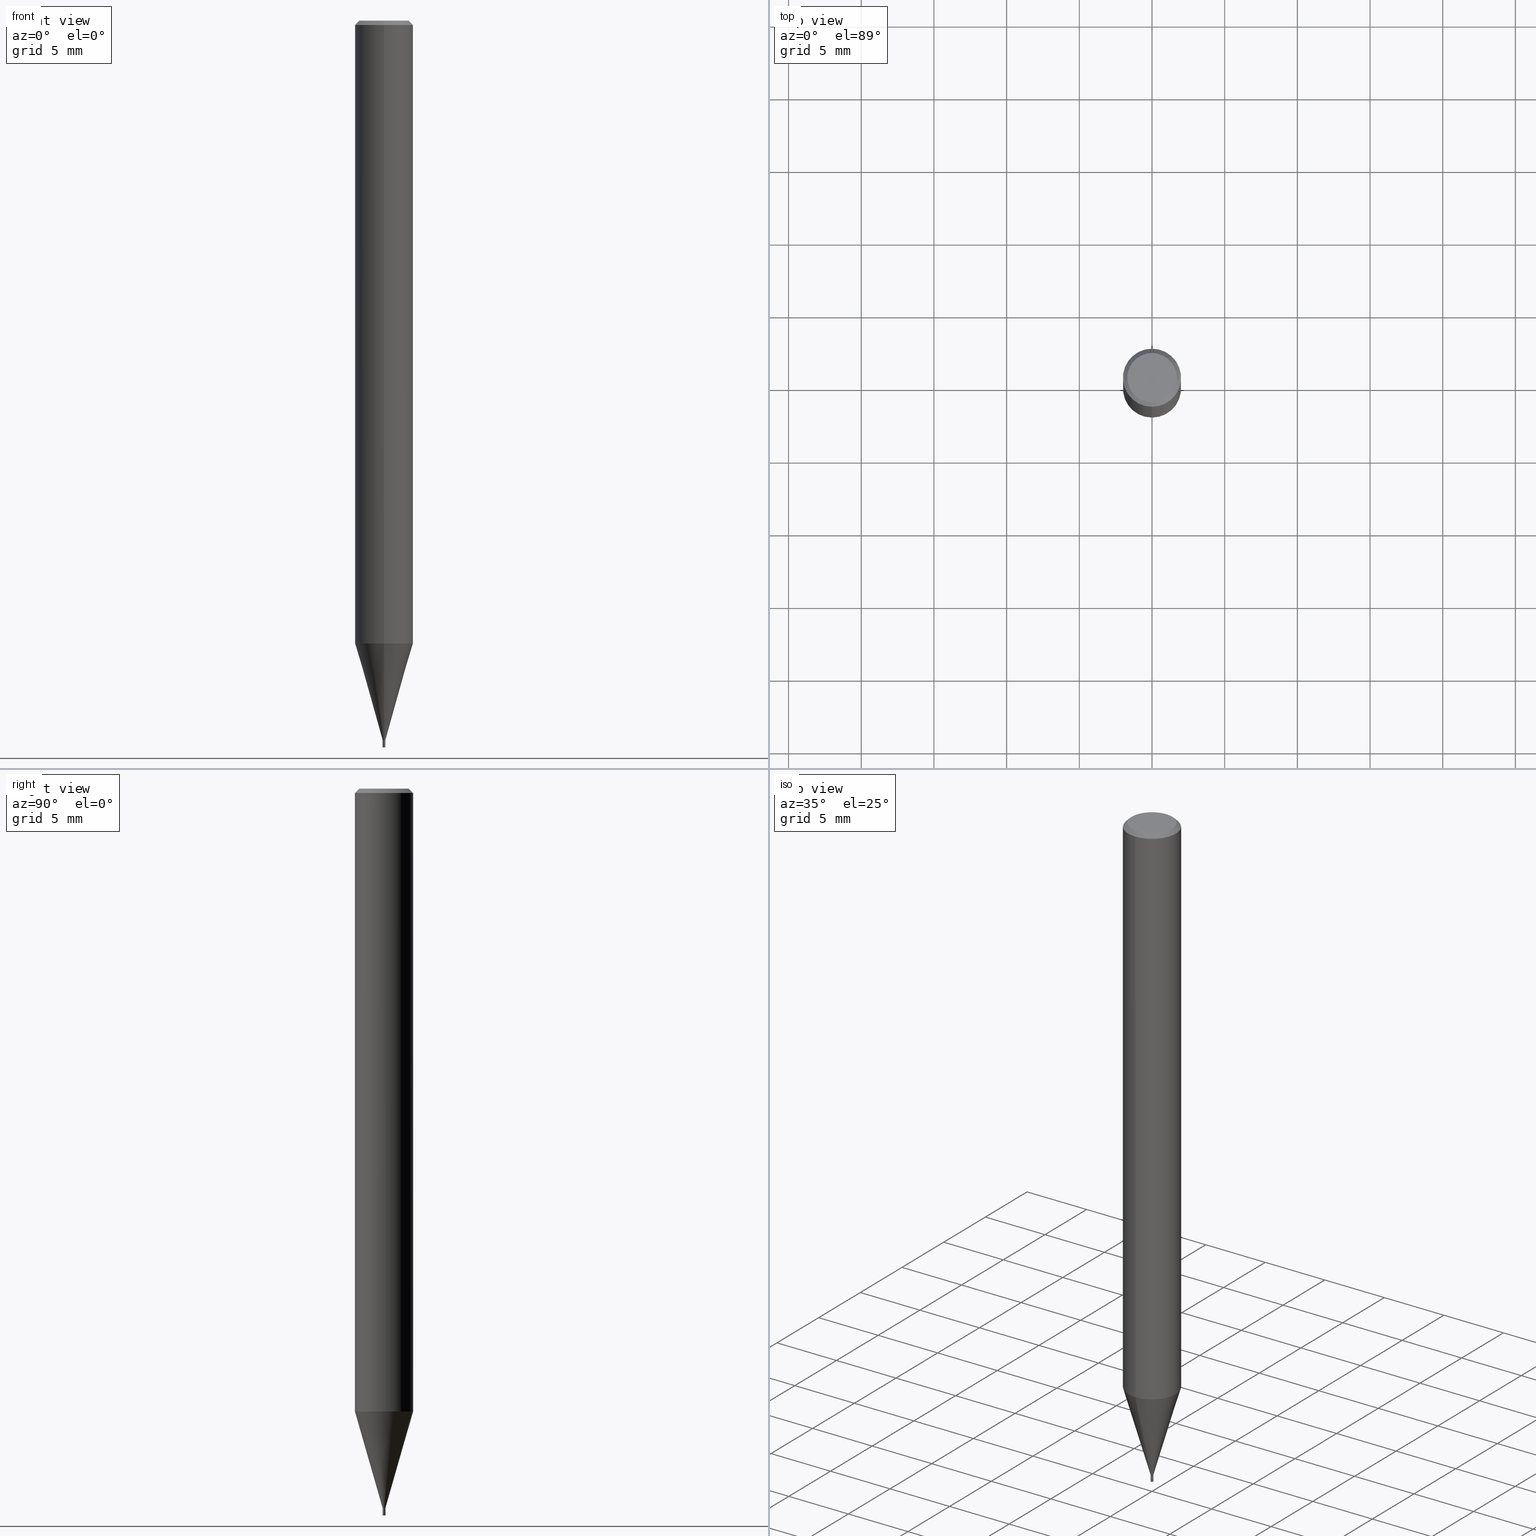
[diagram: canonical four-view strip — front | top / right | iso, engineering-drawing reading convention]
A machine part, canonical four-view strip (front | top / right | iso — engineering-drawing reading convention). The complete STEP part file that produces these views, byte-faithful:
ISO-10303-21;
HEADER;
FILE_DESCRIPTION(('no description'),'unknown implementation level');
FILE_NAME('HLRS4002-002-005-Huellk.stp','  ',('CIMSOURCE GmbH'),('CADClick - KiM GmbH - www.kimweb.de'),'unknown preprocess','ACIS','unknown authorization');
FILE_SCHEMA(('automotive_design'));
ENDSEC;
DATA;
#1=MECHANICAL_DESIGN_GEOMETRIC_PRESENTATION_REPRESENTATION(' ',(#14,#15,#16,#17,#18,#19,#20,#21,#22,#23,#24,#25,#26,#27,#28,#29,#30,#31,#32,#33,#34,#35,#36,#37,#38,#39,#40,#41,#42,#43,#44,#45,#46,#47,#48,#49,#50,#51,#52,#53,#54,#55,#56,#57,#58,#59,#60,#61,#62,#63,#64,#65,#66,#67,#68,#69,#70,#71,#72,#73,#74,#75,#76,#77,#78,#79,#80,#81,#82,#83,#84,#85,#86,#87,#88,#89,#90,#91,#92,#93,#94,#95,#96,#97,#98,#99,#100,#101,#102,#103,#104,#105,#106,#107,#108,#109,#110,#111,#112,#113,#114,#115,#116,#117,#118,#119,#120,#121),#10);
#2=PRODUCT_DEFINITION_CONTEXT('',#122,'design');
#3=APPLICATION_PROTOCOL_DEFINITION('INTERNATIONAL STANDARD','automotive_design',1994,#122);
#4=PRODUCT_CATEGORY_RELATIONSHIP('NONE','NONE',#123,#124);
#5=SHAPE_DEFINITION_REPRESENTATION(#125,#126);
#6=PRODUCT_DEFINITION_CONTEXT('',#127,'design');
#7=APPLICATION_PROTOCOL_DEFINITION('INTERNATIONAL STANDARD','automotive_design',1994,#127);
#8=PRODUCT_CATEGORY_RELATIONSHIP('NONE','NONE',#128,#129);
#9=SHAPE_DEFINITION_REPRESENTATION(#130,#131);
#10= (GEOMETRIC_REPRESENTATION_CONTEXT(3)GLOBAL_UNCERTAINTY_ASSIGNED_CONTEXT((#134))GLOBAL_UNIT_ASSIGNED_CONTEXT((#136,#137,#138))REPRESENTATION_CONTEXT('NONE','WORKSPACE'));
#14=STYLED_ITEM('',(#140),#141);
#15=STYLED_ITEM('',(#142),#143);
#16=STYLED_ITEM('',(#144),#145);
#17=STYLED_ITEM('',(#146),#147);
#18=STYLED_ITEM('',(#148),#149);
#19=STYLED_ITEM('',(#150),#151);
#20=STYLED_ITEM('',(#152),#153);
#21=STYLED_ITEM('',(#154),#155);
#22=STYLED_ITEM('',(#156),#157);
#23=STYLED_ITEM('',(#158),#159);
#24=STYLED_ITEM('',(#160),#161);
#25=STYLED_ITEM('',(#162),#163);
#26=STYLED_ITEM('',(#164),#165);
#27=STYLED_ITEM('',(#166),#167);
#28=STYLED_ITEM('',(#168),#169);
#29=STYLED_ITEM('',(#170),#171);
#30=STYLED_ITEM('',(#172),#173);
#31=STYLED_ITEM('',(#174),#175);
#32=STYLED_ITEM('',(#176),#177);
#33=STYLED_ITEM('',(#178),#179);
#34=STYLED_ITEM('',(#180),#181);
#35=STYLED_ITEM('',(#182),#183);
#36=STYLED_ITEM('',(#184),#185);
#37=STYLED_ITEM('',(#186),#187);
#38=STYLED_ITEM('',(#188),#189);
#39=STYLED_ITEM('',(#190),#191);
#40=STYLED_ITEM('',(#192),#193);
#41=STYLED_ITEM('',(#194),#195);
#42=STYLED_ITEM('',(#196),#197);
#43=STYLED_ITEM('',(#198),#199);
#44=STYLED_ITEM('',(#200),#201);
#45=STYLED_ITEM('',(#202),#203);
#46=STYLED_ITEM('',(#204),#205);
#47=STYLED_ITEM('',(#206),#207);
#48=STYLED_ITEM('',(#208),#209);
#49=STYLED_ITEM('',(#210),#211);
#50=STYLED_ITEM('',(#212),#213);
#51=STYLED_ITEM('',(#214),#215);
#52=STYLED_ITEM('',(#216),#217);
#53=STYLED_ITEM('',(#218),#219);
#54=STYLED_ITEM('',(#220),#221);
#55=STYLED_ITEM('',(#222),#223);
#56=STYLED_ITEM('',(#224),#225);
#57=STYLED_ITEM('',(#226),#227);
#58=STYLED_ITEM('',(#228),#229);
#59=STYLED_ITEM('',(#230),#231);
#60=STYLED_ITEM('',(#232),#233);
#61=STYLED_ITEM('',(#234),#235);
#62=STYLED_ITEM('',(#236),#237);
#63=STYLED_ITEM('',(#238),#239);
#64=STYLED_ITEM('',(#240),#241);
#65=STYLED_ITEM('',(#242),#243);
#66=STYLED_ITEM('',(#244),#245);
#67=STYLED_ITEM('',(#246),#247);
#68=STYLED_ITEM('',(#248),#249);
#69=STYLED_ITEM('',(#250),#251);
#70=STYLED_ITEM('',(#252),#253);
#71=STYLED_ITEM('',(#254),#255);
#72=STYLED_ITEM('',(#256),#257);
#73=STYLED_ITEM('',(#258),#259);
#74=STYLED_ITEM('',(#260),#261);
#75=STYLED_ITEM('',(#262),#263);
#76=STYLED_ITEM('',(#264),#265);
#77=STYLED_ITEM('',(#266),#267);
#78=STYLED_ITEM('',(#268),#269);
#79=STYLED_ITEM('',(#270),#271);
#80=STYLED_ITEM('',(#272),#273);
#81=STYLED_ITEM('',(#274),#275);
#82=STYLED_ITEM('',(#276),#277);
#83=STYLED_ITEM('',(#278),#279);
#84=STYLED_ITEM('',(#280),#281);
#85=STYLED_ITEM('',(#282),#283);
#86=STYLED_ITEM('',(#284),#285);
#87=STYLED_ITEM('',(#286),#287);
#88=STYLED_ITEM('',(#288),#289);
#89=STYLED_ITEM('',(#290),#291);
#90=STYLED_ITEM('',(#292),#293);
#91=STYLED_ITEM('',(#294),#295);
#92=STYLED_ITEM('',(#296),#297);
#93=STYLED_ITEM('',(#298),#299);
#94=STYLED_ITEM('',(#300),#301);
#95=STYLED_ITEM('',(#302),#303);
#96=STYLED_ITEM('',(#304),#305);
#97=STYLED_ITEM('',(#306),#307);
#98=STYLED_ITEM('',(#308),#309);
#99=STYLED_ITEM('',(#310),#311);
#100=STYLED_ITEM('',(#312),#313);
#101=STYLED_ITEM('',(#314),#315);
#102=STYLED_ITEM('',(#316),#317);
#103=STYLED_ITEM('',(#318),#319);
#104=STYLED_ITEM('',(#320),#321);
#105=STYLED_ITEM('',(#322),#323);
#106=STYLED_ITEM('',(#324),#325);
#107=STYLED_ITEM('',(#326),#327);
#108=STYLED_ITEM('',(#328),#329);
#109=STYLED_ITEM('',(#330),#331);
#110=STYLED_ITEM('',(#332),#333);
#111=STYLED_ITEM('',(#334),#335);
#112=STYLED_ITEM('',(#336),#337);
#113=STYLED_ITEM('',(#338),#339);
#114=STYLED_ITEM('',(#340),#341);
#115=STYLED_ITEM('',(#342),#343);
#116=STYLED_ITEM('',(#344),#345);
#117=STYLED_ITEM('',(#346),#347);
#118=STYLED_ITEM('',(#348),#349);
#119=STYLED_ITEM('',(#350),#351);
#120=STYLED_ITEM('',(#352),#353);
#121=STYLED_ITEM('',(#354),#355);
#122=APPLICATION_CONTEXT(' ');
#123=PRODUCT_CATEGORY('part','NONE');
#124=PRODUCT_RELATED_PRODUCT_CATEGORY('detail',' ',(#356));
#125=PRODUCT_DEFINITION_SHAPE('NONE','NONE',#357);
#126=ADVANCED_BREP_SHAPE_REPRESENTATION('1',(#147,#358),#10);
#127=APPLICATION_CONTEXT(' ');
#128=PRODUCT_CATEGORY('part','NONE');
#129=PRODUCT_RELATED_PRODUCT_CATEGORY('detail',' ',(#359));
#130=PRODUCT_DEFINITION_SHAPE('NONE','NONE',#360);
#131=ADVANCED_BREP_SHAPE_REPRESENTATION('2',(#215,#361),#10);
#134=UNCERTAINTY_MEASURE_WITH_UNIT(LENGTH_MEASURE(1.0E-006),#136,'','');
#136= (CONVERSION_BASED_UNIT('MILLIMETRE',#364)LENGTH_UNIT()NAMED_UNIT(#367));
#137= (NAMED_UNIT(#369)PLANE_ANGLE_UNIT()SI_UNIT($,.RADIAN.));
#138= (NAMED_UNIT(#369)SOLID_ANGLE_UNIT()SI_UNIT($,.STERADIAN.));
#140=PRESENTATION_STYLE_ASSIGNMENT((#375));
#141=EDGE_CURVE('',#247,#331,#376,.T.);
#142=PRESENTATION_STYLE_ASSIGNMENT((#377));
#143=VERTEX_POINT('',#378);
#144=PRESENTATION_STYLE_ASSIGNMENT((#379));
#145=VERTEX_POINT('',#380);
#146=PRESENTATION_STYLE_ASSIGNMENT((#381));
#147=MANIFOLD_SOLID_BREP('1',#382);
#148=PRESENTATION_STYLE_ASSIGNMENT((#383));
#149=EDGE_CURVE('',#275,#311,#384,.T.);
#150=PRESENTATION_STYLE_ASSIGNMENT((#385));
#151=VERTEX_POINT('',#386);
#152=PRESENTATION_STYLE_ASSIGNMENT((#387));
#153=VERTEX_POINT('',#388);
#154=PRESENTATION_STYLE_ASSIGNMENT((#389));
#155=ADVANCED_FACE('',(#390),#391,.F.);
#156=PRESENTATION_STYLE_ASSIGNMENT((#392));
#157=ADVANCED_FACE('',(#393,#394),#395,.T.);
#158=PRESENTATION_STYLE_ASSIGNMENT((#396));
#159=VERTEX_POINT('',#397);
#160=PRESENTATION_STYLE_ASSIGNMENT((#398));
#161=EDGE_CURVE('',#283,#143,#399,.T.);
#162=PRESENTATION_STYLE_ASSIGNMENT((#400));
#163=VERTEX_POINT('',#401);
#164=PRESENTATION_STYLE_ASSIGNMENT((#402));
#165=EDGE_CURVE('',#277,#195,#403,.T.);
#166=PRESENTATION_STYLE_ASSIGNMENT((#404));
#167=VERTEX_POINT('',#405);
#168=PRESENTATION_STYLE_ASSIGNMENT((#406));
#169=VERTEX_POINT('',#407);
#170=PRESENTATION_STYLE_ASSIGNMENT((#408));
#171=EDGE_CURVE('',#305,#145,#409,.T.);
#172=PRESENTATION_STYLE_ASSIGNMENT((#410));
#173=VERTEX_POINT('',#411);
#174=PRESENTATION_STYLE_ASSIGNMENT((#412));
#175=ADVANCED_FACE('',(#413),#414,.T.);
#176=PRESENTATION_STYLE_ASSIGNMENT((#415));
#177=EDGE_CURVE('',#331,#247,#416,.T.);
#178=PRESENTATION_STYLE_ASSIGNMENT((#417));
#179=EDGE_CURVE('',#151,#207,#418,.T.);
#180=PRESENTATION_STYLE_ASSIGNMENT((#419));
#181=ADVANCED_FACE('',(#420,#421),#422,.T.);
#182=PRESENTATION_STYLE_ASSIGNMENT((#423));
#183=EDGE_CURVE('',#167,#207,#424,.T.);
#184=PRESENTATION_STYLE_ASSIGNMENT((#425));
#185=EDGE_CURVE('',#321,#219,#426,.T.);
#186=PRESENTATION_STYLE_ASSIGNMENT((#427));
#187=EDGE_CURVE('',#287,#321,#428,.T.);
#188=PRESENTATION_STYLE_ASSIGNMENT((#429));
#189=EDGE_CURVE('',#145,#305,#430,.T.);
#190=PRESENTATION_STYLE_ASSIGNMENT((#431));
#191=VERTEX_POINT('',#432);
#192=PRESENTATION_STYLE_ASSIGNMENT((#433));
#193=VERTEX_POINT('',#434);
#194=PRESENTATION_STYLE_ASSIGNMENT((#435));
#195=VERTEX_POINT('',#436);
#196=PRESENTATION_STYLE_ASSIGNMENT((#437));
#197=ADVANCED_FACE('',(#438),#439,.T.);
#198=PRESENTATION_STYLE_ASSIGNMENT((#440));
#199=ADVANCED_FACE('',(#441),#442,.T.);
#200=PRESENTATION_STYLE_ASSIGNMENT((#443));
#201=EDGE_CURVE('',#207,#331,#444,.T.);
#202=PRESENTATION_STYLE_ASSIGNMENT((#445));
#203=EDGE_CURVE('',#169,#163,#446,.T.);
#204=PRESENTATION_STYLE_ASSIGNMENT((#447));
#205=EDGE_CURVE('',#241,#153,#448,.T.);
#206=PRESENTATION_STYLE_ASSIGNMENT((#449));
#207=VERTEX_POINT('',#450);
#208=PRESENTATION_STYLE_ASSIGNMENT((#451));
#209=EDGE_CURVE('',#311,#159,#452,.T.);
#210=PRESENTATION_STYLE_ASSIGNMENT((#453));
#211=ADVANCED_FACE('',(#454,#455),#456,.T.);
#212=PRESENTATION_STYLE_ASSIGNMENT((#457));
#213=EDGE_CURVE('',#173,#275,#458,.T.);
#214=PRESENTATION_STYLE_ASSIGNMENT((#459));
#215=MANIFOLD_SOLID_BREP('2',#460);
#216=PRESENTATION_STYLE_ASSIGNMENT((#461));
#217=EDGE_CURVE('',#159,#241,#462,.T.);
#218=PRESENTATION_STYLE_ASSIGNMENT((#463));
#219=VERTEX_POINT('',#464);
#220=PRESENTATION_STYLE_ASSIGNMENT((#465));
#221=EDGE_CURVE('',#219,#321,#466,.T.);
#222=PRESENTATION_STYLE_ASSIGNMENT((#467));
#223=EDGE_CURVE('',#153,#173,#468,.T.);
#224=PRESENTATION_STYLE_ASSIGNMENT((#469));
#225=ADVANCED_FACE('',(#470),#471,.T.);
#226=PRESENTATION_STYLE_ASSIGNMENT((#472));
#227=EDGE_CURVE('',#283,#193,#473,.T.);
#228=PRESENTATION_STYLE_ASSIGNMENT((#474));
#229=EDGE_CURVE('',#271,#191,#475,.T.);
#230=PRESENTATION_STYLE_ASSIGNMENT((#476));
#231=EDGE_CURVE('',#341,#287,#477,.T.);
#232=PRESENTATION_STYLE_ASSIGNMENT((#478));
#233=ADVANCED_FACE('',(#479),#480,.T.);
#234=PRESENTATION_STYLE_ASSIGNMENT((#481));
#235=EDGE_CURVE('',#143,#163,#482,.T.);
#236=PRESENTATION_STYLE_ASSIGNMENT((#483));
#237=ADVANCED_FACE('',(#484),#485,.T.);
#238=PRESENTATION_STYLE_ASSIGNMENT((#486));
#239=ADVANCED_FACE('',(#487),#488,.T.);
#240=PRESENTATION_STYLE_ASSIGNMENT((#489));
#241=VERTEX_POINT('',#490);
#242=PRESENTATION_STYLE_ASSIGNMENT((#491));
#243=ADVANCED_FACE('',(#492),#493,.T.);
#244=PRESENTATION_STYLE_ASSIGNMENT((#494));
#245=VERTEX_POINT('',#495);
#246=PRESENTATION_STYLE_ASSIGNMENT((#496));
#247=VERTEX_POINT('',#497);
#248=PRESENTATION_STYLE_ASSIGNMENT((#498));
#249=ADVANCED_FACE('',(#499),#500,.T.);
#250=PRESENTATION_STYLE_ASSIGNMENT((#501));
#251=EDGE_CURVE('',#305,#341,#502,.T.);
#252=PRESENTATION_STYLE_ASSIGNMENT((#503));
#253=VERTEX_POINT('',#504);
#254=PRESENTATION_STYLE_ASSIGNMENT((#505));
#255=EDGE_CURVE('',#253,#143,#506,.T.);
#256=PRESENTATION_STYLE_ASSIGNMENT((#507));
#257=EDGE_CURVE('',#169,#253,#508,.T.);
#258=PRESENTATION_STYLE_ASSIGNMENT((#509));
#259=EDGE_CURVE('',#271,#329,#510,.T.);
#260=PRESENTATION_STYLE_ASSIGNMENT((#511));
#261=EDGE_CURVE('',#173,#153,#512,.T.);
#262=PRESENTATION_STYLE_ASSIGNMENT((#513));
#263=ADVANCED_FACE('',(#514),#515,.T.);
#264=PRESENTATION_STYLE_ASSIGNMENT((#516));
#265=EDGE_CURVE('',#241,#275,#517,.T.);
#266=PRESENTATION_STYLE_ASSIGNMENT((#518));
#267=EDGE_CURVE('',#287,#145,#519,.T.);
#268=PRESENTATION_STYLE_ASSIGNMENT((#520));
#269=EDGE_CURVE('',#207,#167,#521,.T.);
#270=PRESENTATION_STYLE_ASSIGNMENT((#522));
#271=VERTEX_POINT('',#523);
#272=PRESENTATION_STYLE_ASSIGNMENT((#524));
#273=EDGE_CURVE('',#245,#191,#525,.T.);
#274=PRESENTATION_STYLE_ASSIGNMENT((#526));
#275=VERTEX_POINT('',#527);
#276=PRESENTATION_STYLE_ASSIGNMENT((#528));
#277=VERTEX_POINT('',#529);
#278=PRESENTATION_STYLE_ASSIGNMENT((#530));
#279=EDGE_CURVE('',#245,#329,#531,.T.);
#280=PRESENTATION_STYLE_ASSIGNMENT((#532));
#281=EDGE_CURVE('',#219,#341,#533,.T.);
#282=PRESENTATION_STYLE_ASSIGNMENT((#534));
#283=VERTEX_POINT('',#535);
#284=PRESENTATION_STYLE_ASSIGNMENT((#536));
#285=EDGE_CURVE('',#275,#241,#537,.T.);
#286=PRESENTATION_STYLE_ASSIGNMENT((#538));
#287=VERTEX_POINT('',#539);
#288=PRESENTATION_STYLE_ASSIGNMENT((#540));
#289=EDGE_CURVE('',#247,#167,#541,.T.);
#290=PRESENTATION_STYLE_ASSIGNMENT((#542));
#291=EDGE_CURVE('',#253,#193,#543,.T.);
#292=PRESENTATION_STYLE_ASSIGNMENT((#544));
#293=EDGE_CURVE('',#329,#245,#545,.T.);
#294=PRESENTATION_STYLE_ASSIGNMENT((#546));
#295=EDGE_CURVE('',#195,#271,#547,.T.);
#296=PRESENTATION_STYLE_ASSIGNMENT((#548));
#297=ADVANCED_FACE('',(#549),#550,.T.);
#298=PRESENTATION_STYLE_ASSIGNMENT((#551));
#299=ADVANCED_FACE('',(#552),#553,.T.);
#300=PRESENTATION_STYLE_ASSIGNMENT((#554));
#301=ADVANCED_FACE('',(#555),#556,.T.);
#302=PRESENTATION_STYLE_ASSIGNMENT((#557));
#303=ADVANCED_FACE('',(#558),#559,.F.);
#304=PRESENTATION_STYLE_ASSIGNMENT((#560));
#305=VERTEX_POINT('',#561);
#306=PRESENTATION_STYLE_ASSIGNMENT((#562));
#307=EDGE_CURVE('',#193,#283,#563,.T.);
#308=PRESENTATION_STYLE_ASSIGNMENT((#564));
#309=ADVANCED_FACE('',(#565),#566,.T.);
#310=PRESENTATION_STYLE_ASSIGNMENT((#567));
#311=VERTEX_POINT('',#568);
#312=PRESENTATION_STYLE_ASSIGNMENT((#569));
#313=VERTEX_POINT('',#570);
#314=PRESENTATION_STYLE_ASSIGNMENT((#571));
#315=ADVANCED_FACE('',(#572),#573,.T.);
#316=PRESENTATION_STYLE_ASSIGNMENT((#574));
#317=EDGE_CURVE('',#313,#151,#575,.T.);
#318=PRESENTATION_STYLE_ASSIGNMENT((#576));
#319=EDGE_CURVE('',#191,#271,#577,.T.);
#320=PRESENTATION_STYLE_ASSIGNMENT((#578));
#321=VERTEX_POINT('',#579);
#322=PRESENTATION_STYLE_ASSIGNMENT((#580));
#323=EDGE_CURVE('',#195,#277,#581,.T.);
#324=PRESENTATION_STYLE_ASSIGNMENT((#582));
#325=ADVANCED_FACE('',(#583,#584),#585,.T.);
#326=PRESENTATION_STYLE_ASSIGNMENT((#586));
#327=ADVANCED_FACE('',(#587),#588,.T.);
#328=PRESENTATION_STYLE_ASSIGNMENT((#589));
#329=VERTEX_POINT('',#590);
#330=PRESENTATION_STYLE_ASSIGNMENT((#591));
#331=VERTEX_POINT('',#592);
#332=PRESENTATION_STYLE_ASSIGNMENT((#593));
#333=EDGE_CURVE('',#163,#169,#594,.T.);
#334=PRESENTATION_STYLE_ASSIGNMENT((#595));
#335=EDGE_CURVE('',#143,#253,#596,.T.);
#336=PRESENTATION_STYLE_ASSIGNMENT((#597));
#337=EDGE_CURVE('',#151,#313,#598,.T.);
#338=PRESENTATION_STYLE_ASSIGNMENT((#599));
#339=EDGE_CURVE('',#191,#277,#600,.T.);
#340=PRESENTATION_STYLE_ASSIGNMENT((#601));
#341=VERTEX_POINT('',#602);
#342=PRESENTATION_STYLE_ASSIGNMENT((#603));
#343=ADVANCED_FACE('',(#604),#605,.T.);
#344=PRESENTATION_STYLE_ASSIGNMENT((#606));
#345=EDGE_CURVE('',#159,#311,#607,.T.);
#346=PRESENTATION_STYLE_ASSIGNMENT((#608));
#347=ADVANCED_FACE('',(#609),#610,.F.);
#348=PRESENTATION_STYLE_ASSIGNMENT((#611));
#349=ADVANCED_FACE('',(#612),#613,.F.);
#350=PRESENTATION_STYLE_ASSIGNMENT((#614));
#351=EDGE_CURVE('',#167,#313,#615,.T.);
#352=PRESENTATION_STYLE_ASSIGNMENT((#616));
#353=ADVANCED_FACE('',(#617),#618,.T.);
#354=PRESENTATION_STYLE_ASSIGNMENT((#619));
#355=EDGE_CURVE('',#287,#341,#620,.T.);
#356=PRODUCT('1','1','PART-1-DESC',(#621));
#357=PRODUCT_DEFINITION('NONE','NONE',#622,#2);
#358=AXIS2_PLACEMENT_3D('',#623,#624,#625);
#359=PRODUCT('2','2','PART-2-DESC',(#626));
#360=PRODUCT_DEFINITION('NONE','NONE',#627,#6);
#361=AXIS2_PLACEMENT_3D('',#628,#629,#630);
#364=LENGTH_MEASURE_WITH_UNIT(LENGTH_MEASURE(1.0),#631);
#367=DIMENSIONAL_EXPONENTS(1.0,0.0,0.0,0.0,0.0,0.0,0.0);
#369=DIMENSIONAL_EXPONENTS(0.0,0.0,0.0,0.0,0.0,0.0,0.0);
#375=CURVE_STYLE('',#632,POSITIVE_LENGTH_MEASURE(1.0E-006),#633);
#376=CIRCLE('',#634,0.0949);
#377=POINT_STYLE(' ',#635,POSITIVE_LENGTH_MEASURE(1.0E-006),#636);
#378=CARTESIAN_POINT('',(1.13214857410879E-017,-0.09245,-49.49));
#379=POINT_STYLE(' ',#637,POSITIVE_LENGTH_MEASURE(1.0E-006),#638);
#380=CARTESIAN_POINT('',(1.22338174746856E-017,-0.0999,-49.87));
#381=SURFACE_STYLE_USAGE(.BOTH.,#639);
#382=CLOSED_SHELL('',(#309,#353,#225,#327,#301,#263,#211,#175,#297,#243,#299,#197,#181,#237,#233,#239));
#383=CURVE_STYLE('',#640,POSITIVE_LENGTH_MEASURE(1.0E-006),#641);
#384=LINE('',#642,#643);
#385=POINT_STYLE(' ',#644,POSITIVE_LENGTH_MEASURE(1.0E-006),#645);
#386=CARTESIAN_POINT('',(5.5107285922007E-018,-0.045,-49.99));
#387=POINT_STYLE(' ',#646,POSITIVE_LENGTH_MEASURE(1.0E-006),#647);
#388=CARTESIAN_POINT('',(0.0,2.0,-42.838));
#389=SURFACE_STYLE_USAGE(.BOTH.,#648);
#390=FACE_OUTER_BOUND('',#649,.T.);
#391=CONICAL_SURFACE('',#650,0.06995,1.37301541050937);
#392=SURFACE_STYLE_USAGE(.BOTH.,#651);
#393=FACE_OUTER_BOUND('',#652,.T.);
#394=FACE_BOUND('',#653,.T.);
#395=PLANE('',#654);
#396=POINT_STYLE(' ',#655,POSITIVE_LENGTH_MEASURE(1.0E-006),#656);
#397=CARTESIAN_POINT('',(0.0,1.7,0.00999999999999801));
#398=CURVE_STYLE('',#657,POSITIVE_LENGTH_MEASURE(1.0E-006),#658);
#399=LINE('',#659,#660);
#400=POINT_STYLE(' ',#661,POSITIVE_LENGTH_MEASURE(1.0E-006),#662);
#401=CARTESIAN_POINT('',(2.44915147732706E-016,-1.99995,-42.838));
#402=CURVE_STYLE('',#663,POSITIVE_LENGTH_MEASURE(1.0E-006),#664);
#403=CIRCLE('',#665,0.045);
#404=POINT_STYLE(' ',#666,POSITIVE_LENGTH_MEASURE(1.0E-006),#667);
#405=CARTESIAN_POINT('',(0.0,0.045,-49.88));
#406=POINT_STYLE(' ',#668,POSITIVE_LENGTH_MEASURE(1.0E-006),#669);
#407=CARTESIAN_POINT('',(0.0,1.99995,-42.838));
#408=CURVE_STYLE('',#670,POSITIVE_LENGTH_MEASURE(1.0E-006),#671);
#409=CIRCLE('',#672,0.0999);
#410=POINT_STYLE(' ',#673,POSITIVE_LENGTH_MEASURE(1.0E-006),#674);
#411=CARTESIAN_POINT('',(2.44921270764475E-016,-2.0,-42.838));
#412=SURFACE_STYLE_USAGE(.BOTH.,#675);
#413=FACE_OUTER_BOUND('',#676,.T.);
#414=PLANE('',#677);
#415=CURVE_STYLE('',#678,POSITIVE_LENGTH_MEASURE(1.0E-006),#679);
#416=CIRCLE('',#680,0.0949);
#417=CURVE_STYLE('',#681,POSITIVE_LENGTH_MEASURE(1.0E-006),#682);
#418=LINE('',#683,#684);
#419=SURFACE_STYLE_USAGE(.BOTH.,#685);
#420=FACE_OUTER_BOUND('',#686,.T.);
#421=FACE_BOUND('',#687,.T.);
#422=PLANE('',#688);
#423=CURVE_STYLE('',#689,POSITIVE_LENGTH_MEASURE(1.0E-006),#690);
#424=CIRCLE('',#691,0.045);
#425=CURVE_STYLE('',#692,POSITIVE_LENGTH_MEASURE(1.0E-006),#693);
#426=CIRCLE('',#694,0.08);
#427=CURVE_STYLE('',#695,POSITIVE_LENGTH_MEASURE(1.0E-006),#696);
#428=CIRCLE('',#697,0.02);
#429=CURVE_STYLE('',#698,POSITIVE_LENGTH_MEASURE(1.0E-006),#699);
#430=CIRCLE('',#700,0.0999);
#431=POINT_STYLE(' ',#701,POSITIVE_LENGTH_MEASURE(1.0E-006),#702);
#432=CARTESIAN_POINT('',(0.0,0.045,-49.88));
#433=POINT_STYLE(' ',#703,POSITIVE_LENGTH_MEASURE(1.0E-006),#704);
#434=CARTESIAN_POINT('',(0.0,0.09245,-49.87));
#435=POINT_STYLE(' ',#705,POSITIVE_LENGTH_MEASURE(1.0E-006),#706);
#436=CARTESIAN_POINT('',(5.5107285922007E-018,-0.045,-49.96));
#437=SURFACE_STYLE_USAGE(.BOTH.,#707);
#438=FACE_OUTER_BOUND('',#708,.T.);
#439=CYLINDRICAL_SURFACE('',#709,0.09245);
#440=SURFACE_STYLE_USAGE(.BOTH.,#710);
#441=FACE_OUTER_BOUND('',#711,.T.);
#442=CONICAL_SURFACE('',#712,0.09995,0.000999999666666895);
#443=CURVE_STYLE('',#713,POSITIVE_LENGTH_MEASURE(1.0E-006),#714);
#444=LINE('',#715,#716);
#445=CURVE_STYLE('',#717,POSITIVE_LENGTH_MEASURE(1.0E-006),#718);
#446=CIRCLE('',#719,1.99995);
#447=CURVE_STYLE('',#720,POSITIVE_LENGTH_MEASURE(1.0E-006),#721);
#448=LINE('',#722,#723);
#449=POINT_STYLE(' ',#724,POSITIVE_LENGTH_MEASURE(1.0E-006),#725);
#450=CARTESIAN_POINT('',(5.5107285922007E-018,-0.045,-49.88));
#451=CURVE_STYLE('',#726,POSITIVE_LENGTH_MEASURE(1.0E-006),#727);
#452=CIRCLE('',#728,1.7);
#453=SURFACE_STYLE_USAGE(.BOTH.,#729);
#454=FACE_OUTER_BOUND('',#730,.T.);
#455=FACE_BOUND('',#731,.T.);
#456=PLANE('',#732);
#457=CURVE_STYLE('',#733,POSITIVE_LENGTH_MEASURE(1.0E-006),#734);
#458=LINE('',#735,#736);
#459=SURFACE_STYLE_USAGE(.BOTH.,#737);
#460=CLOSED_SHELL('',(#303,#315,#343,#155,#349,#157,#199,#249,#325,#347));
#461=CURVE_STYLE('',#738,POSITIVE_LENGTH_MEASURE(1.0E-006),#739);
#462=LINE('',#740,#741);
#463=POINT_STYLE(' ',#742,POSITIVE_LENGTH_MEASURE(1.0E-006),#743);
#464=CARTESIAN_POINT('',(0.0,0.08,-49.99));
#465=CURVE_STYLE('',#744,POSITIVE_LENGTH_MEASURE(1.0E-006),#745);
#466=CIRCLE('',#746,0.08);
#467=CURVE_STYLE('',#747,POSITIVE_LENGTH_MEASURE(1.0E-006),#748);
#468=CIRCLE('',#749,2.0);
#469=SURFACE_STYLE_USAGE(.BOTH.,#750);
#470=FACE_OUTER_BOUND('',#751,.T.);
#471=CYLINDRICAL_SURFACE('',#752,0.09245);
#472=CURVE_STYLE('',#753,POSITIVE_LENGTH_MEASURE(1.0E-006),#754);
#473=CIRCLE('',#755,0.09245);
#474=CURVE_STYLE('',#756,POSITIVE_LENGTH_MEASURE(1.0E-006),#757);
#475=CIRCLE('',#758,0.045);
#476=CURVE_STYLE('',#759,POSITIVE_LENGTH_MEASURE(1.0E-006),#760);
#477=CIRCLE('',#761,0.1);
#478=SURFACE_STYLE_USAGE(.BOTH.,#762);
#479=FACE_OUTER_BOUND('',#763,.T.);
#480=CYLINDRICAL_SURFACE('',#764,0.045);
#481=CURVE_STYLE('',#765,POSITIVE_LENGTH_MEASURE(1.0E-006),#766);
#482=LINE('',#767,#768);
#483=SURFACE_STYLE_USAGE(.BOTH.,#769);
#484=FACE_OUTER_BOUND('',#770,.T.);
#485=CONICAL_SURFACE('',#771,0.069975,1.37320827416588);
#486=SURFACE_STYLE_USAGE(.BOTH.,#772);
#487=FACE_OUTER_BOUND('',#773,.T.);
#488=PLANE('',#774);
#489=POINT_STYLE(' ',#775,POSITIVE_LENGTH_MEASURE(1.0E-006),#776);
#490=CARTESIAN_POINT('',(0.0,2.0,-0.289999999999999));
#491=SURFACE_STYLE_USAGE(.BOTH.,#777);
#492=FACE_OUTER_BOUND('',#778,.T.);
#493=CYLINDRICAL_SURFACE('',#779,2.0);
#494=POINT_STYLE(' ',#780,POSITIVE_LENGTH_MEASURE(1.0E-006),#781);
#495=CARTESIAN_POINT('',(0.0,0.09495,-49.87));
#496=POINT_STYLE(' ',#782,POSITIVE_LENGTH_MEASURE(1.0E-006),#783);
#497=CARTESIAN_POINT('',(0.0,0.0949,-49.87));
#498=SURFACE_STYLE_USAGE(.BOTH.,#784);
#499=FACE_OUTER_BOUND('',#785,.T.);
#500=TOROIDAL_SURFACE('',#786,0.08,0.02);
#501=CURVE_STYLE('',#787,POSITIVE_LENGTH_MEASURE(1.0E-006),#788);
#502=LINE('',#789,#790);
#503=POINT_STYLE(' ',#791,POSITIVE_LENGTH_MEASURE(1.0E-006),#792);
#504=CARTESIAN_POINT('',(0.0,0.09245,-49.49));
#505=CURVE_STYLE('',#793,POSITIVE_LENGTH_MEASURE(1.0E-006),#794);
#506=CIRCLE('',#795,0.09245);
#507=CURVE_STYLE('',#796,POSITIVE_LENGTH_MEASURE(1.0E-006),#797);
#508=LINE('',#798,#799);
#509=CURVE_STYLE('',#800,POSITIVE_LENGTH_MEASURE(1.0E-006),#801);
#510=LINE('',#802,#803);
#511=CURVE_STYLE('',#804,POSITIVE_LENGTH_MEASURE(1.0E-006),#805);
#512=CIRCLE('',#806,2.0);
#513=SURFACE_STYLE_USAGE(.BOTH.,#807);
#514=FACE_OUTER_BOUND('',#808,.T.);
#515=CONICAL_SURFACE('',#809,1.85,0.785398163397453);
#516=CURVE_STYLE('',#810,POSITIVE_LENGTH_MEASURE(1.0E-006),#811);
#517=CIRCLE('',#812,2.0);
#518=CURVE_STYLE('',#813,POSITIVE_LENGTH_MEASURE(1.0E-006),#814);
#519=LINE('',#815,#816);
#520=CURVE_STYLE('',#817,POSITIVE_LENGTH_MEASURE(1.0E-006),#818);
#521=CIRCLE('',#819,0.045);
#522=POINT_STYLE(' ',#820,POSITIVE_LENGTH_MEASURE(1.0E-006),#821);
#523=CARTESIAN_POINT('',(5.5107285922007E-018,-0.045,-49.88));
#524=CURVE_STYLE('',#822,POSITIVE_LENGTH_MEASURE(1.0E-006),#823);
#525=LINE('',#824,#825);
#526=POINT_STYLE(' ',#826,POSITIVE_LENGTH_MEASURE(1.0E-006),#827);
#527=CARTESIAN_POINT('',(2.44921270764475E-016,-2.0,-0.289999999999999));
#528=POINT_STYLE(' ',#828,POSITIVE_LENGTH_MEASURE(1.0E-006),#829);
#529=CARTESIAN_POINT('',(0.0,0.045,-49.96));
#530=CURVE_STYLE('',#830,POSITIVE_LENGTH_MEASURE(1.0E-006),#831);
#531=CIRCLE('',#832,0.09495);
#532=CURVE_STYLE('',#833,POSITIVE_LENGTH_MEASURE(1.0E-006),#834);
#533=CIRCLE('',#835,0.02);
#534=POINT_STYLE(' ',#836,POSITIVE_LENGTH_MEASURE(1.0E-006),#837);
#535=CARTESIAN_POINT('',(1.13214857410879E-017,-0.09245,-49.87));
#536=CURVE_STYLE('',#838,POSITIVE_LENGTH_MEASURE(1.0E-006),#839);
#537=CIRCLE('',#840,2.0);
#538=POINT_STYLE(' ',#841,POSITIVE_LENGTH_MEASURE(1.0E-006),#842);
#539=CARTESIAN_POINT('',(1.22460635382238E-017,-0.1,-49.97));
#540=CURVE_STYLE('',#843,POSITIVE_LENGTH_MEASURE(1.0E-006),#844);
#541=LINE('',#845,#846);
#542=CURVE_STYLE('',#847,POSITIVE_LENGTH_MEASURE(1.0E-006),#848);
#543=LINE('',#849,#850);
#544=CURVE_STYLE('',#851,POSITIVE_LENGTH_MEASURE(1.0E-006),#852);
#545=CIRCLE('',#853,0.09495);
#546=CURVE_STYLE('',#854,POSITIVE_LENGTH_MEASURE(1.0E-006),#855);
#547=LINE('',#856,#857);
#548=SURFACE_STYLE_USAGE(.BOTH.,#858);
#549=FACE_OUTER_BOUND('',#859,.T.);
#550=CONICAL_SURFACE('',#860,1.85,0.785398163397453);
#551=SURFACE_STYLE_USAGE(.BOTH.,#861);
#552=FACE_OUTER_BOUND('',#862,.T.);
#553=CONICAL_SURFACE('',#863,1.0462,0.279262361421134);
#554=SURFACE_STYLE_USAGE(.BOTH.,#864);
#555=FACE_OUTER_BOUND('',#865,.T.);
#556=CYLINDRICAL_SURFACE('',#866,2.0);
#557=SURFACE_STYLE_USAGE(.BOTH.,#867);
#558=FACE_OUTER_BOUND('',#868,.T.);
#559=CYLINDRICAL_SURFACE('',#869,0.045);
#560=POINT_STYLE(' ',#870,POSITIVE_LENGTH_MEASURE(1.0E-006),#871);
#561=CARTESIAN_POINT('',(0.0,0.0999,-49.87));
#562=CURVE_STYLE('',#872,POSITIVE_LENGTH_MEASURE(1.0E-006),#873);
#563=CIRCLE('',#874,0.09245);
#564=SURFACE_STYLE_USAGE(.BOTH.,#875);
#565=FACE_OUTER_BOUND('',#876,.T.);
#566=CYLINDRICAL_SURFACE('',#877,0.045);
#567=POINT_STYLE(' ',#878,POSITIVE_LENGTH_MEASURE(1.0E-006),#879);
#568=CARTESIAN_POINT('',(2.08183080149804E-016,-1.7,0.00999999999999801));
#569=POINT_STYLE(' ',#880,POSITIVE_LENGTH_MEASURE(1.0E-006),#881);
#570=CARTESIAN_POINT('',(0.0,0.045,-49.99));
#571=SURFACE_STYLE_USAGE(.BOTH.,#882);
#572=FACE_OUTER_BOUND('',#883,.T.);
#573=TOROIDAL_SURFACE('',#884,0.08,0.02);
#574=CURVE_STYLE('',#885,POSITIVE_LENGTH_MEASURE(1.0E-006),#886);
#575=CIRCLE('',#887,0.045);
#576=CURVE_STYLE('',#888,POSITIVE_LENGTH_MEASURE(1.0E-006),#889);
#577=CIRCLE('',#890,0.045);
#578=POINT_STYLE(' ',#891,POSITIVE_LENGTH_MEASURE(1.0E-006),#892);
#579=CARTESIAN_POINT('',(9.79685083057902E-018,-0.08,-49.99));
#580=CURVE_STYLE('',#893,POSITIVE_LENGTH_MEASURE(1.0E-006),#894);
#581=CIRCLE('',#895,0.045);
#582=SURFACE_STYLE_USAGE(.BOTH.,#896);
#583=FACE_BOUND('',#897,.T.);
#584=FACE_OUTER_BOUND('',#898,.T.);
#585=PLANE('',#899);
#586=SURFACE_STYLE_USAGE(.BOTH.,#900);
#587=FACE_OUTER_BOUND('',#901,.T.);
#588=CONICAL_SURFACE('',#902,1.0462,0.279262361421134);
#589=POINT_STYLE(' ',#903,POSITIVE_LENGTH_MEASURE(1.0E-006),#904);
#590=CARTESIAN_POINT('',(1.16276373295435E-017,-0.09495,-49.87));
#591=POINT_STYLE(' ',#905,POSITIVE_LENGTH_MEASURE(1.0E-006),#906);
#592=CARTESIAN_POINT('',(1.16215142977744E-017,-0.0949,-49.87));
#593=CURVE_STYLE('',#907,POSITIVE_LENGTH_MEASURE(1.0E-006),#908);
#594=CIRCLE('',#909,1.99995);
#595=CURVE_STYLE('',#910,POSITIVE_LENGTH_MEASURE(1.0E-006),#911);
#596=CIRCLE('',#912,0.09245);
#597=CURVE_STYLE('',#913,POSITIVE_LENGTH_MEASURE(1.0E-006),#914);
#598=CIRCLE('',#915,0.045);
#599=CURVE_STYLE('',#916,POSITIVE_LENGTH_MEASURE(1.0E-006),#917);
#600=LINE('',#918,#919);
#601=POINT_STYLE(' ',#920,POSITIVE_LENGTH_MEASURE(1.0E-006),#921);
#602=CARTESIAN_POINT('',(0.0,0.1,-49.97));
#603=SURFACE_STYLE_USAGE(.BOTH.,#922);
#604=FACE_OUTER_BOUND('',#923,.T.);
#605=CONICAL_SURFACE('',#924,0.09995,0.000999999666666895);
#606=CURVE_STYLE('',#925,POSITIVE_LENGTH_MEASURE(1.0E-006),#926);
#607=CIRCLE('',#927,1.7);
#608=SURFACE_STYLE_USAGE(.BOTH.,#928);
#609=FACE_OUTER_BOUND('',#929,.T.);
#610=CYLINDRICAL_SURFACE('',#930,0.045);
#611=SURFACE_STYLE_USAGE(.BOTH.,#931);
#612=FACE_OUTER_BOUND('',#932,.T.);
#613=CONICAL_SURFACE('',#933,0.06995,1.37301541050937);
#614=CURVE_STYLE('',#934,POSITIVE_LENGTH_MEASURE(1.0E-006),#935);
#615=LINE('',#936,#937);
#616=SURFACE_STYLE_USAGE(.BOTH.,#938);
#617=FACE_OUTER_BOUND('',#939,.T.);
#618=CONICAL_SURFACE('',#940,0.069975,1.37320827416588);
#619=CURVE_STYLE('',#941,POSITIVE_LENGTH_MEASURE(1.0E-006),#942);
#620=CIRCLE('',#943,0.1);
#621=PRODUCT_CONTEXT('',#122,'mechanical');
#622=PRODUCT_DEFINITION_FORMATION_WITH_SPECIFIED_SOURCE(' ','NONE',#356,.NOT_KNOWN.);
#623=CARTESIAN_POINT('',(0.0,0.0,0.0));
#624=DIRECTION('',(0.0,0.0,1.0));
#625=DIRECTION('',(1.0,0.0,0.0));
#626=PRODUCT_CONTEXT('',#127,'mechanical');
#627=PRODUCT_DEFINITION_FORMATION_WITH_SPECIFIED_SOURCE(' ','NONE',#359,.NOT_KNOWN.);
#628=CARTESIAN_POINT('',(0.0,0.0,0.0));
#629=DIRECTION('',(0.0,0.0,1.0));
#630=DIRECTION('',(1.0,0.0,0.0));
#631= (NAMED_UNIT(#367)LENGTH_UNIT()SI_UNIT(.MILLI.,.METRE.));
#632=DRAUGHTING_PRE_DEFINED_CURVE_FONT('continuous');
#633=COLOUR_RGB('',0.800000011920929,0.800000011920929,0.800000011920929);
#634=AXIS2_PLACEMENT_3D('',#945,#946,#947);
#635=PRE_DEFINED_MARKER('');
#636=COLOUR_RGB('',0.498039215803146,0.498039215803146,0.498039215803146);
#637=PRE_DEFINED_MARKER('');
#638=COLOUR_RGB('',0.800000011920929,0.800000011920929,0.800000011920929);
#639=SURFACE_SIDE_STYLE('',(#948));
#640=DRAUGHTING_PRE_DEFINED_CURVE_FONT('continuous');
#641=COLOUR_RGB('',0.498039215803146,0.498039215803146,0.498039215803146);
#642=CARTESIAN_POINT('',(2.2655217545714E-016,-1.85,-0.140000000000001));
#643=VECTOR('',#949,1.0);
#644=PRE_DEFINED_MARKER('');
#645=COLOUR_RGB('',0.800000011920929,0.800000011920929,0.800000011920929);
#646=PRE_DEFINED_MARKER('');
#647=COLOUR_RGB('',0.498039215803146,0.498039215803146,0.498039215803146);
#648=SURFACE_SIDE_STYLE('',(#950));
#649=EDGE_LOOP('',(#951,#952,#953,#954));
#650=AXIS2_PLACEMENT_3D('',#955,#956,#957);
#651=SURFACE_SIDE_STYLE('',(#958));
#652=EDGE_LOOP('',(#959,#960));
#653=EDGE_LOOP('',(#961,#962));
#654=AXIS2_PLACEMENT_3D('',#963,#964,#965);
#655=PRE_DEFINED_MARKER('');
#656=COLOUR_RGB('',0.498039215803146,0.498039215803146,0.498039215803146);
#657=DRAUGHTING_PRE_DEFINED_CURVE_FONT('continuous');
#658=COLOUR_RGB('',0.498039215803146,0.498039215803146,0.498039215803146);
#659=CARTESIAN_POINT('',(1.13214857410879E-017,-0.09245,-49.68));
#660=VECTOR('',#966,1.0);
#661=PRE_DEFINED_MARKER('');
#662=COLOUR_RGB('',0.498039215803146,0.498039215803146,0.498039215803146);
#663=DRAUGHTING_PRE_DEFINED_CURVE_FONT('continuous');
#664=COLOUR_RGB('',0.498039215803146,0.498039215803146,0.498039215803146);
#665=AXIS2_PLACEMENT_3D('',#967,#968,#969);
#666=PRE_DEFINED_MARKER('');
#667=COLOUR_RGB('',0.800000011920929,0.800000011920929,0.800000011920929);
#668=PRE_DEFINED_MARKER('');
#669=COLOUR_RGB('',0.498039215803146,0.498039215803146,0.498039215803146);
#670=DRAUGHTING_PRE_DEFINED_CURVE_FONT('continuous');
#671=COLOUR_RGB('',0.800000011920929,0.800000011920929,0.800000011920929);
#672=AXIS2_PLACEMENT_3D('',#970,#971,#972);
#673=PRE_DEFINED_MARKER('');
#674=COLOUR_RGB('',0.498039215803146,0.498039215803146,0.498039215803146);
#675=SURFACE_SIDE_STYLE('',(#973));
#676=EDGE_LOOP('',(#974,#975));
#677=AXIS2_PLACEMENT_3D('',#976,#977,#978);
#678=DRAUGHTING_PRE_DEFINED_CURVE_FONT('continuous');
#679=COLOUR_RGB('',0.800000011920929,0.800000011920929,0.800000011920929);
#680=AXIS2_PLACEMENT_3D('',#979,#980,#981);
#681=DRAUGHTING_PRE_DEFINED_CURVE_FONT('continuous');
#682=COLOUR_RGB('',0.800000011920929,0.800000011920929,0.800000011920929);
#683=CARTESIAN_POINT('',(5.5107285922007E-018,-0.045,-49.935));
#684=VECTOR('',#982,1.0);
#685=SURFACE_SIDE_STYLE('',(#983));
#686=EDGE_LOOP('',(#984,#985));
#687=EDGE_LOOP('',(#986,#987));
#688=AXIS2_PLACEMENT_3D('',#988,#989,#990);
#689=DRAUGHTING_PRE_DEFINED_CURVE_FONT('continuous');
#690=COLOUR_RGB('',0.800000011920929,0.800000011920929,0.800000011920929);
#691=AXIS2_PLACEMENT_3D('',#991,#992,#993);
#692=DRAUGHTING_PRE_DEFINED_CURVE_FONT('continuous');
#693=COLOUR_RGB('',0.800000011920929,0.800000011920929,0.800000011920929);
#694=AXIS2_PLACEMENT_3D('',#994,#995,#996);
#695=DRAUGHTING_PRE_DEFINED_CURVE_FONT('continuous');
#696=COLOUR_RGB('',0.800000011920929,0.800000011920929,0.800000011920929);
#697=AXIS2_PLACEMENT_3D('',#997,#998,#999);
#698=DRAUGHTING_PRE_DEFINED_CURVE_FONT('continuous');
#699=COLOUR_RGB('',0.800000011920929,0.800000011920929,0.800000011920929);
#700=AXIS2_PLACEMENT_3D('',#1000,#1001,#1002);
#701=PRE_DEFINED_MARKER('');
#702=COLOUR_RGB('',0.498039215803146,0.498039215803146,0.498039215803146);
#703=PRE_DEFINED_MARKER('');
#704=COLOUR_RGB('',0.498039215803146,0.498039215803146,0.498039215803146);
#705=PRE_DEFINED_MARKER('');
#706=COLOUR_RGB('',0.498039215803146,0.498039215803146,0.498039215803146);
#707=SURFACE_SIDE_STYLE('',(#1003));
#708=EDGE_LOOP('',(#1004,#1005,#1006,#1007));
#709=AXIS2_PLACEMENT_3D('',#1008,#1009,#1010);
#710=SURFACE_SIDE_STYLE('',(#1011));
#711=EDGE_LOOP('',(#1012,#1013,#1014,#1015));
#712=AXIS2_PLACEMENT_3D('',#1016,#1017,#1018);
#713=DRAUGHTING_PRE_DEFINED_CURVE_FONT('continuous');
#714=COLOUR_RGB('',0.800000011920929,0.800000011920929,0.800000011920929);
#715=CARTESIAN_POINT('',(8.56612144498753E-018,-0.06995,-49.875));
#716=VECTOR('',#1019,1.0);
#717=DRAUGHTING_PRE_DEFINED_CURVE_FONT('continuous');
#718=COLOUR_RGB('',0.498039215803146,0.498039215803146,0.498039215803146);
#719=AXIS2_PLACEMENT_3D('',#1020,#1021,#1022);
#720=DRAUGHTING_PRE_DEFINED_CURVE_FONT('continuous');
#721=COLOUR_RGB('',0.498039215803146,0.498039215803146,0.498039215803146);
#722=CARTESIAN_POINT('',(-2.44921270764475E-016,2.0,-21.564));
#723=VECTOR('',#1023,1.0);
#724=PRE_DEFINED_MARKER('');
#725=COLOUR_RGB('',0.800000011920929,0.800000011920929,0.800000011920929);
#726=DRAUGHTING_PRE_DEFINED_CURVE_FONT('continuous');
#727=COLOUR_RGB('',0.498039215803146,0.498039215803146,0.498039215803146);
#728=AXIS2_PLACEMENT_3D('',#1024,#1025,#1026);
#729=SURFACE_SIDE_STYLE('',(#1027));
#730=EDGE_LOOP('',(#1028,#1029));
#731=EDGE_LOOP('',(#1030,#1031));
#732=AXIS2_PLACEMENT_3D('',#1032,#1033,#1034);
#733=DRAUGHTING_PRE_DEFINED_CURVE_FONT('continuous');
#734=COLOUR_RGB('',0.498039215803146,0.498039215803146,0.498039215803146);
#735=CARTESIAN_POINT('',(2.44921270764475E-016,-2.0,-21.564));
#736=VECTOR('',#1035,1.0);
#737=SURFACE_SIDE_STYLE('',(#1036));
#738=DRAUGHTING_PRE_DEFINED_CURVE_FONT('continuous');
#739=COLOUR_RGB('',0.498039215803146,0.498039215803146,0.498039215803146);
#740=CARTESIAN_POINT('',(-2.2655217545714E-016,1.85,-0.140000000000001));
#741=VECTOR('',#1037,1.0);
#742=PRE_DEFINED_MARKER('');
#743=COLOUR_RGB('',0.800000011920929,0.800000011920929,0.800000011920929);
#744=DRAUGHTING_PRE_DEFINED_CURVE_FONT('continuous');
#745=COLOUR_RGB('',0.800000011920929,0.800000011920929,0.800000011920929);
#746=AXIS2_PLACEMENT_3D('',#1038,#1039,#1040);
#747=DRAUGHTING_PRE_DEFINED_CURVE_FONT('continuous');
#748=COLOUR_RGB('',0.498039215803146,0.498039215803146,0.498039215803146);
#749=AXIS2_PLACEMENT_3D('',#1041,#1042,#1043);
#750=SURFACE_SIDE_STYLE('',(#1044));
#751=EDGE_LOOP('',(#1045,#1046,#1047,#1048));
#752=AXIS2_PLACEMENT_3D('',#1049,#1050,#1051);
#753=DRAUGHTING_PRE_DEFINED_CURVE_FONT('continuous');
#754=COLOUR_RGB('',0.498039215803146,0.498039215803146,0.498039215803146);
#755=AXIS2_PLACEMENT_3D('',#1052,#1053,#1054);
#756=DRAUGHTING_PRE_DEFINED_CURVE_FONT('continuous');
#757=COLOUR_RGB('',0.498039215803146,0.498039215803146,0.498039215803146);
#758=AXIS2_PLACEMENT_3D('',#1055,#1056,#1057);
#759=DRAUGHTING_PRE_DEFINED_CURVE_FONT('continuous');
#760=COLOUR_RGB('',0.800000011920929,0.800000011920929,0.800000011920929);
#761=AXIS2_PLACEMENT_3D('',#1058,#1059,#1060);
#762=SURFACE_SIDE_STYLE('',(#1061));
#763=EDGE_LOOP('',(#1062,#1063,#1064,#1065));
#764=AXIS2_PLACEMENT_3D('',#1066,#1067,#1068);
#765=DRAUGHTING_PRE_DEFINED_CURVE_FONT('continuous');
#766=COLOUR_RGB('',0.498039215803146,0.498039215803146,0.498039215803146);
#767=CARTESIAN_POINT('',(1.28118316736897E-016,-1.0462,-46.164));
#768=VECTOR('',#1069,1.0);
#769=SURFACE_SIDE_STYLE('',(#1070));
#770=EDGE_LOOP('',(#1071,#1072,#1073,#1074));
#771=AXIS2_PLACEMENT_3D('',#1075,#1076,#1077);
#772=SURFACE_SIDE_STYLE('',(#1078));
#773=EDGE_LOOP('',(#1079,#1080));
#774=AXIS2_PLACEMENT_3D('',#1081,#1082,#1083);
#775=PRE_DEFINED_MARKER('');
#776=COLOUR_RGB('',0.498039215803146,0.498039215803146,0.498039215803146);
#777=SURFACE_SIDE_STYLE('',(#1084));
#778=EDGE_LOOP('',(#1085,#1086,#1087,#1088));
#779=AXIS2_PLACEMENT_3D('',#1089,#1090,#1091);
#780=PRE_DEFINED_MARKER('');
#781=COLOUR_RGB('',0.498039215803146,0.498039215803146,0.498039215803146);
#782=PRE_DEFINED_MARKER('');
#783=COLOUR_RGB('',0.800000011920929,0.800000011920929,0.800000011920929);
#784=SURFACE_SIDE_STYLE('',(#1092));
#785=EDGE_LOOP('',(#1093,#1094,#1095,#1096));
#786=AXIS2_PLACEMENT_3D('',#1097,#1098,#1099);
#787=DRAUGHTING_PRE_DEFINED_CURVE_FONT('continuous');
#788=COLOUR_RGB('',0.800000011920929,0.800000011920929,0.800000011920929);
#789=CARTESIAN_POINT('',(-1.22399405064547E-017,0.09995,-49.92));
#790=VECTOR('',#1100,1.0);
#791=PRE_DEFINED_MARKER('');
#792=COLOUR_RGB('',0.498039215803146,0.498039215803146,0.498039215803146);
#793=DRAUGHTING_PRE_DEFINED_CURVE_FONT('continuous');
#794=COLOUR_RGB('',0.498039215803146,0.498039215803146,0.498039215803146);
#795=AXIS2_PLACEMENT_3D('',#1101,#1102,#1103);
#796=DRAUGHTING_PRE_DEFINED_CURVE_FONT('continuous');
#797=COLOUR_RGB('',0.498039215803146,0.498039215803146,0.498039215803146);
#798=CARTESIAN_POINT('',(-1.28118316736897E-016,1.0462,-46.164));
#799=VECTOR('',#1104,1.0);
#800=DRAUGHTING_PRE_DEFINED_CURVE_FONT('continuous');
#801=COLOUR_RGB('',0.498039215803146,0.498039215803146,0.498039215803146);
#802=CARTESIAN_POINT('',(8.56918296087209E-018,-0.069975,-49.875));
#803=VECTOR('',#1105,1.0);
#804=DRAUGHTING_PRE_DEFINED_CURVE_FONT('continuous');
#805=COLOUR_RGB('',0.498039215803146,0.498039215803146,0.498039215803146);
#806=AXIS2_PLACEMENT_3D('',#1106,#1107,#1108);
#807=SURFACE_SIDE_STYLE('',(#1109));
#808=EDGE_LOOP('',(#1110,#1111,#1112,#1113));
#809=AXIS2_PLACEMENT_3D('',#1114,#1115,#1116);
#810=DRAUGHTING_PRE_DEFINED_CURVE_FONT('continuous');
#811=COLOUR_RGB('',0.498039215803146,0.498039215803146,0.498039215803146);
#812=AXIS2_PLACEMENT_3D('',#1117,#1118,#1119);
#813=DRAUGHTING_PRE_DEFINED_CURVE_FONT('continuous');
#814=COLOUR_RGB('',0.800000011920929,0.800000011920929,0.800000011920929);
#815=CARTESIAN_POINT('',(1.22399405064547E-017,-0.09995,-49.92));
#816=VECTOR('',#1120,1.0);
#817=DRAUGHTING_PRE_DEFINED_CURVE_FONT('continuous');
#818=COLOUR_RGB('',0.800000011920929,0.800000011920929,0.800000011920929);
#819=AXIS2_PLACEMENT_3D('',#1121,#1122,#1123);
#820=PRE_DEFINED_MARKER('');
#821=COLOUR_RGB('',0.498039215803146,0.498039215803146,0.498039215803146);
#822=DRAUGHTING_PRE_DEFINED_CURVE_FONT('continuous');
#823=COLOUR_RGB('',0.498039215803146,0.498039215803146,0.498039215803146);
#824=CARTESIAN_POINT('',(-8.56918296087208E-018,0.069975,-49.875));
#825=VECTOR('',#1124,1.0);
#826=PRE_DEFINED_MARKER('');
#827=COLOUR_RGB('',0.498039215803146,0.498039215803146,0.498039215803146);
#828=PRE_DEFINED_MARKER('');
#829=COLOUR_RGB('',0.498039215803146,0.498039215803146,0.498039215803146);
#830=DRAUGHTING_PRE_DEFINED_CURVE_FONT('continuous');
#831=COLOUR_RGB('',0.498039215803146,0.498039215803146,0.498039215803146);
#832=AXIS2_PLACEMENT_3D('',#1125,#1126,#1127);
#833=DRAUGHTING_PRE_DEFINED_CURVE_FONT('continuous');
#834=COLOUR_RGB('',0.800000011920929,0.800000011920929,0.800000011920929);
#835=AXIS2_PLACEMENT_3D('',#1128,#1129,#1130);
#836=PRE_DEFINED_MARKER('');
#837=COLOUR_RGB('',0.498039215803146,0.498039215803146,0.498039215803146);
#838=DRAUGHTING_PRE_DEFINED_CURVE_FONT('continuous');
#839=COLOUR_RGB('',0.498039215803146,0.498039215803146,0.498039215803146);
#840=AXIS2_PLACEMENT_3D('',#1131,#1132,#1133);
#841=PRE_DEFINED_MARKER('');
#842=COLOUR_RGB('',0.800000011920929,0.800000011920929,0.800000011920929);
#843=DRAUGHTING_PRE_DEFINED_CURVE_FONT('continuous');
#844=COLOUR_RGB('',0.800000011920929,0.800000011920929,0.800000011920929);
#845=CARTESIAN_POINT('',(-8.56612144498752E-018,0.06995,-49.875));
#846=VECTOR('',#1134,1.0);
#847=DRAUGHTING_PRE_DEFINED_CURVE_FONT('continuous');
#848=COLOUR_RGB('',0.498039215803146,0.498039215803146,0.498039215803146);
#849=CARTESIAN_POINT('',(-1.13214857410879E-017,0.09245,-49.68));
#850=VECTOR('',#1135,1.0);
#851=DRAUGHTING_PRE_DEFINED_CURVE_FONT('continuous');
#852=COLOUR_RGB('',0.498039215803146,0.498039215803146,0.498039215803146);
#853=AXIS2_PLACEMENT_3D('',#1136,#1137,#1138);
#854=DRAUGHTING_PRE_DEFINED_CURVE_FONT('continuous');
#855=COLOUR_RGB('',0.498039215803146,0.498039215803146,0.498039215803146);
#856=CARTESIAN_POINT('',(5.5107285922007E-018,-0.045,-49.92));
#857=VECTOR('',#1139,1.0);
#858=SURFACE_SIDE_STYLE('',(#1140));
#859=EDGE_LOOP('',(#1141,#1142,#1143,#1144));
#860=AXIS2_PLACEMENT_3D('',#1145,#1146,#1147);
#861=SURFACE_SIDE_STYLE('',(#1148));
#862=EDGE_LOOP('',(#1149,#1150,#1151,#1152));
#863=AXIS2_PLACEMENT_3D('',#1153,#1154,#1155);
#864=SURFACE_SIDE_STYLE('',(#1156));
#865=EDGE_LOOP('',(#1157,#1158,#1159,#1160));
#866=AXIS2_PLACEMENT_3D('',#1161,#1162,#1163);
#867=SURFACE_SIDE_STYLE('',(#1164));
#868=EDGE_LOOP('',(#1165,#1166,#1167,#1168));
#869=AXIS2_PLACEMENT_3D('',#1169,#1170,#1171);
#870=PRE_DEFINED_MARKER('');
#871=COLOUR_RGB('',0.800000011920929,0.800000011920929,0.800000011920929);
#872=DRAUGHTING_PRE_DEFINED_CURVE_FONT('continuous');
#873=COLOUR_RGB('',0.498039215803146,0.498039215803146,0.498039215803146);
#874=AXIS2_PLACEMENT_3D('',#1172,#1173,#1174);
#875=SURFACE_SIDE_STYLE('',(#1175));
#876=EDGE_LOOP('',(#1176,#1177,#1178,#1179));
#877=AXIS2_PLACEMENT_3D('',#1180,#1181,#1182);
#878=PRE_DEFINED_MARKER('');
#879=COLOUR_RGB('',0.498039215803146,0.498039215803146,0.498039215803146);
#880=PRE_DEFINED_MARKER('');
#881=COLOUR_RGB('',0.800000011920929,0.800000011920929,0.800000011920929);
#882=SURFACE_SIDE_STYLE('',(#1183));
#883=EDGE_LOOP('',(#1184,#1185,#1186,#1187));
#884=AXIS2_PLACEMENT_3D('',#1188,#1189,#1190);
#885=DRAUGHTING_PRE_DEFINED_CURVE_FONT('continuous');
#886=COLOUR_RGB('',0.800000011920929,0.800000011920929,0.800000011920929);
#887=AXIS2_PLACEMENT_3D('',#1191,#1192,#1193);
#888=DRAUGHTING_PRE_DEFINED_CURVE_FONT('continuous');
#889=COLOUR_RGB('',0.498039215803146,0.498039215803146,0.498039215803146);
#890=AXIS2_PLACEMENT_3D('',#1194,#1195,#1196);
#891=PRE_DEFINED_MARKER('');
#892=COLOUR_RGB('',0.800000011920929,0.800000011920929,0.800000011920929);
#893=DRAUGHTING_PRE_DEFINED_CURVE_FONT('continuous');
#894=COLOUR_RGB('',0.498039215803146,0.498039215803146,0.498039215803146);
#895=AXIS2_PLACEMENT_3D('',#1197,#1198,#1199);
#896=SURFACE_SIDE_STYLE('',(#1200));
#897=EDGE_LOOP('',(#1201,#1202));
#898=EDGE_LOOP('',(#1203,#1204));
#899=AXIS2_PLACEMENT_3D('',#1205,#1206,#1207);
#900=SURFACE_SIDE_STYLE('',(#1208));
#901=EDGE_LOOP('',(#1209,#1210,#1211,#1212));
#902=AXIS2_PLACEMENT_3D('',#1213,#1214,#1215);
#903=PRE_DEFINED_MARKER('');
#904=COLOUR_RGB('',0.498039215803146,0.498039215803146,0.498039215803146);
#905=PRE_DEFINED_MARKER('');
#906=COLOUR_RGB('',0.800000011920929,0.800000011920929,0.800000011920929);
#907=DRAUGHTING_PRE_DEFINED_CURVE_FONT('continuous');
#908=COLOUR_RGB('',0.498039215803146,0.498039215803146,0.498039215803146);
#909=AXIS2_PLACEMENT_3D('',#1216,#1217,#1218);
#910=DRAUGHTING_PRE_DEFINED_CURVE_FONT('continuous');
#911=COLOUR_RGB('',0.498039215803146,0.498039215803146,0.498039215803146);
#912=AXIS2_PLACEMENT_3D('',#1219,#1220,#1221);
#913=DRAUGHTING_PRE_DEFINED_CURVE_FONT('continuous');
#914=COLOUR_RGB('',0.800000011920929,0.800000011920929,0.800000011920929);
#915=AXIS2_PLACEMENT_3D('',#1222,#1223,#1224);
#916=DRAUGHTING_PRE_DEFINED_CURVE_FONT('continuous');
#917=COLOUR_RGB('',0.498039215803146,0.498039215803146,0.498039215803146);
#918=CARTESIAN_POINT('',(-5.5107285922007E-018,0.045,-49.92));
#919=VECTOR('',#1225,1.0);
#920=PRE_DEFINED_MARKER('');
#921=COLOUR_RGB('',0.800000011920929,0.800000011920929,0.800000011920929);
#922=SURFACE_SIDE_STYLE('',(#1226));
#923=EDGE_LOOP('',(#1227,#1228,#1229,#1230));
#924=AXIS2_PLACEMENT_3D('',#1231,#1232,#1233);
#925=DRAUGHTING_PRE_DEFINED_CURVE_FONT('continuous');
#926=COLOUR_RGB('',0.498039215803146,0.498039215803146,0.498039215803146);
#927=AXIS2_PLACEMENT_3D('',#1234,#1235,#1236);
#928=SURFACE_SIDE_STYLE('',(#1237));
#929=EDGE_LOOP('',(#1238,#1239,#1240,#1241));
#930=AXIS2_PLACEMENT_3D('',#1242,#1243,#1244);
#931=SURFACE_SIDE_STYLE('',(#1245));
#932=EDGE_LOOP('',(#1246,#1247,#1248,#1249));
#933=AXIS2_PLACEMENT_3D('',#1250,#1251,#1252);
#934=DRAUGHTING_PRE_DEFINED_CURVE_FONT('continuous');
#935=COLOUR_RGB('',0.800000011920929,0.800000011920929,0.800000011920929);
#936=CARTESIAN_POINT('',(-5.5107285922007E-018,0.045,-49.935));
#937=VECTOR('',#1253,1.0);
#938=SURFACE_SIDE_STYLE('',(#1254));
#939=EDGE_LOOP('',(#1255,#1256,#1257,#1258));
#940=AXIS2_PLACEMENT_3D('',#1259,#1260,#1261);
#941=DRAUGHTING_PRE_DEFINED_CURVE_FONT('continuous');
#942=COLOUR_RGB('',0.800000011920929,0.800000011920929,0.800000011920929);
#943=AXIS2_PLACEMENT_3D('',#1262,#1263,#1264);
#945=CARTESIAN_POINT('',(0.0,0.0,-49.87));
#946=DIRECTION('',(0.0,0.0,-1.0));
#947=DIRECTION('',(0.0,1.0,0.0));
#948=SURFACE_STYLE_FILL_AREA(#1265);
#949=DIRECTION('',(-8.6592745707194E-017,0.707106781186551,0.707106781186544));
#950=SURFACE_STYLE_FILL_AREA(#1266);
#951=ORIENTED_EDGE('',*,*,#289,.F.);
#952=ORIENTED_EDGE('',*,*,#177,.F.);
#953=ORIENTED_EDGE('',*,*,#201,.F.);
#954=ORIENTED_EDGE('',*,*,#269,.T.);
#955=CARTESIAN_POINT('',(0.0,0.0,-49.875));
#956=DIRECTION('',(-0.0,-0.0,1.0));
#957=DIRECTION('',(0.0,1.0,0.0));
#958=SURFACE_STYLE_FILL_AREA(#1267);
#959=ORIENTED_EDGE('',*,*,#171,.F.);
#960=ORIENTED_EDGE('',*,*,#189,.F.);
#961=ORIENTED_EDGE('',*,*,#141,.T.);
#962=ORIENTED_EDGE('',*,*,#177,.T.);
#963=CARTESIAN_POINT('',(0.0,0.0974,-49.87));
#964=DIRECTION('',(-0.0,0.0,1.0));
#965=DIRECTION('',(0.0,-1.0,0.0));
#966=DIRECTION('',(-0.0,-0.0,1.0));
#967=CARTESIAN_POINT('',(0.0,0.0,-49.96));
#968=DIRECTION('',(0.0,0.0,-1.0));
#969=DIRECTION('',(0.0,1.0,0.0));
#970=CARTESIAN_POINT('',(0.0,0.0,-49.87));
#971=DIRECTION('',(0.0,0.0,-1.0));
#972=DIRECTION('',(0.0,1.0,0.0));
#973=SURFACE_STYLE_FILL_AREA(#1268);
#974=ORIENTED_EDGE('',*,*,#345,.F.);
#975=ORIENTED_EDGE('',*,*,#209,.F.);
#976=CARTESIAN_POINT('',(0.0,0.85,0.00999999999999801));
#977=DIRECTION('',(-0.0,0.0,1.0));
#978=DIRECTION('',(0.0,-1.0,0.0));
#979=CARTESIAN_POINT('',(0.0,0.0,-49.87));
#980=DIRECTION('',(0.0,0.0,-1.0));
#981=DIRECTION('',(0.0,1.0,0.0));
#982=DIRECTION('',(0.0,-0.0,1.0));
#983=SURFACE_STYLE_FILL_AREA(#1269);
#984=ORIENTED_EDGE('',*,*,#279,.F.);
#985=ORIENTED_EDGE('',*,*,#293,.F.);
#986=ORIENTED_EDGE('',*,*,#307,.T.);
#987=ORIENTED_EDGE('',*,*,#227,.T.);
#988=CARTESIAN_POINT('',(0.0,0.0937,-49.87));
#989=DIRECTION('',(-0.0,0.0,1.0));
#990=DIRECTION('',(0.0,-1.0,0.0));
#991=CARTESIAN_POINT('',(0.0,0.0,-49.88));
#992=DIRECTION('',(0.0,0.0,-1.0));
#993=DIRECTION('',(0.0,1.0,0.0));
#994=CARTESIAN_POINT('',(0.0,0.0,-49.99));
#995=DIRECTION('',(0.0,0.0,-1.0));
#996=DIRECTION('',(0.0,1.0,0.0));
#997=CARTESIAN_POINT('',(9.79685083057902E-018,-0.08,-49.97));
#998=DIRECTION('',(1.0,1.22460635382238E-016,0.0));
#999=DIRECTION('',(1.22460635382238E-016,-1.0,-0.0));
#1000=CARTESIAN_POINT('',(0.0,0.0,-49.87));
#1001=DIRECTION('',(0.0,0.0,-1.0));
#1002=DIRECTION('',(0.0,1.0,0.0));
#1003=SURFACE_STYLE_FILL_AREA(#1270);
#1004=ORIENTED_EDGE('',*,*,#291,.T.);
#1005=ORIENTED_EDGE('',*,*,#227,.F.);
#1006=ORIENTED_EDGE('',*,*,#161,.T.);
#1007=ORIENTED_EDGE('',*,*,#335,.T.);
#1008=CARTESIAN_POINT('',(0.0,0.0,-49.68));
#1009=DIRECTION('',(-0.0,-0.0,1.0));
#1010=DIRECTION('',(0.0,1.0,0.0));
#1011=SURFACE_STYLE_FILL_AREA(#1271);
#1012=ORIENTED_EDGE('',*,*,#251,.T.);
#1013=ORIENTED_EDGE('',*,*,#355,.F.);
#1014=ORIENTED_EDGE('',*,*,#267,.T.);
#1015=ORIENTED_EDGE('',*,*,#189,.T.);
#1016=CARTESIAN_POINT('',(0.0,0.0,-49.92));
#1017=DIRECTION('',(0.0,-0.0,-1.0));
#1018=DIRECTION('',(0.0,1.0,0.0));
#1019=DIRECTION('',(1.2007326875743E-016,-0.980505028270052,0.196493993641393));
#1020=CARTESIAN_POINT('',(0.0,0.0,-42.838));
#1021=DIRECTION('',(0.0,0.0,-1.0));
#1022=DIRECTION('',(0.0,1.0,0.0));
#1023=DIRECTION('',(0.0,0.0,-1.0));
#1024=CARTESIAN_POINT('',(0.0,0.0,0.00999999999999801));
#1025=DIRECTION('',(0.0,0.0,-1.0));
#1026=DIRECTION('',(0.0,1.0,0.0));
#1027=SURFACE_STYLE_FILL_AREA(#1272);
#1028=ORIENTED_EDGE('',*,*,#223,.T.);
#1029=ORIENTED_EDGE('',*,*,#261,.T.);
#1030=ORIENTED_EDGE('',*,*,#203,.F.);
#1031=ORIENTED_EDGE('',*,*,#333,.F.);
#1032=CARTESIAN_POINT('',(0.0,1.0,-42.838));
#1033=DIRECTION('',(0.0,0.0,-1.0));
#1034=DIRECTION('',(0.0,1.0,0.0));
#1035=DIRECTION('',(-0.0,-0.0,1.0));
#1036=SURFACE_STYLE_FILL_AREA(#1273);
#1037=DIRECTION('',(-8.6592745707194E-017,0.707106781186551,-0.707106781186544));
#1038=CARTESIAN_POINT('',(0.0,0.0,-49.99));
#1039=DIRECTION('',(0.0,0.0,-1.0));
#1040=DIRECTION('',(0.0,1.0,0.0));
#1041=CARTESIAN_POINT('',(0.0,0.0,-42.838));
#1042=DIRECTION('',(0.0,0.0,-1.0));
#1043=DIRECTION('',(0.0,1.0,0.0));
#1044=SURFACE_STYLE_FILL_AREA(#1274);
#1045=ORIENTED_EDGE('',*,*,#291,.F.);
#1046=ORIENTED_EDGE('',*,*,#255,.T.);
#1047=ORIENTED_EDGE('',*,*,#161,.F.);
#1048=ORIENTED_EDGE('',*,*,#307,.F.);
#1049=CARTESIAN_POINT('',(0.0,0.0,-49.68));
#1050=DIRECTION('',(-0.0,-0.0,1.0));
#1051=DIRECTION('',(0.0,1.0,0.0));
#1052=CARTESIAN_POINT('',(0.0,0.0,-49.87));
#1053=DIRECTION('',(0.0,0.0,-1.0));
#1054=DIRECTION('',(0.0,1.0,0.0));
#1055=CARTESIAN_POINT('',(0.0,0.0,-49.88));
#1056=DIRECTION('',(0.0,0.0,-1.0));
#1057=DIRECTION('',(0.0,1.0,0.0));
#1058=CARTESIAN_POINT('',(0.0,0.0,-49.97));
#1059=DIRECTION('',(0.0,0.0,-1.0));
#1060=DIRECTION('',(0.0,1.0,0.0));
#1061=SURFACE_STYLE_FILL_AREA(#1275);
#1062=ORIENTED_EDGE('',*,*,#339,.T.);
#1063=ORIENTED_EDGE('',*,*,#323,.F.);
#1064=ORIENTED_EDGE('',*,*,#295,.T.);
#1065=ORIENTED_EDGE('',*,*,#229,.T.);
#1066=CARTESIAN_POINT('',(0.0,0.0,-49.92));
#1067=DIRECTION('',(-0.0,-0.0,1.0));
#1068=DIRECTION('',(0.0,1.0,0.0));
#1069=DIRECTION('',(3.37558653544073E-017,-0.275646661876649,0.961259027419904));
#1070=SURFACE_STYLE_FILL_AREA(#1276);
#1071=ORIENTED_EDGE('',*,*,#273,.T.);
#1072=ORIENTED_EDGE('',*,*,#229,.F.);
#1073=ORIENTED_EDGE('',*,*,#259,.T.);
#1074=ORIENTED_EDGE('',*,*,#293,.T.);
#1075=CARTESIAN_POINT('',(0.0,0.0,-49.875));
#1076=DIRECTION('',(-0.0,-0.0,1.0));
#1077=DIRECTION('',(0.0,1.0,0.0));
#1078=SURFACE_STYLE_FILL_AREA(#1277);
#1079=ORIENTED_EDGE('',*,*,#165,.T.);
#1080=ORIENTED_EDGE('',*,*,#323,.T.);
#1081=CARTESIAN_POINT('',(0.0,0.0225,-49.96));
#1082=DIRECTION('',(0.0,0.0,-1.0));
#1083=DIRECTION('',(0.0,1.0,0.0));
#1084=SURFACE_STYLE_FILL_AREA(#1278);
#1085=ORIENTED_EDGE('',*,*,#205,.T.);
#1086=ORIENTED_EDGE('',*,*,#261,.F.);
#1087=ORIENTED_EDGE('',*,*,#213,.T.);
#1088=ORIENTED_EDGE('',*,*,#285,.T.);
#1089=CARTESIAN_POINT('',(0.0,0.0,-21.564));
#1090=DIRECTION('',(-0.0,-0.0,1.0));
#1091=DIRECTION('',(0.0,1.0,0.0));
#1092=SURFACE_STYLE_FILL_AREA(#1279);
#1093=ORIENTED_EDGE('',*,*,#187,.T.);
#1094=ORIENTED_EDGE('',*,*,#221,.F.);
#1095=ORIENTED_EDGE('',*,*,#281,.T.);
#1096=ORIENTED_EDGE('',*,*,#231,.T.);
#1097=CARTESIAN_POINT('',(0.0,0.0,-49.97));
#1098=DIRECTION('',(0.0,0.0,-1.0));
#1099=DIRECTION('',(0.0,-1.0,0.0));
#1100=DIRECTION('',(-1.2246057415197E-019,0.000999999500000404,-0.999999500000375));
#1101=CARTESIAN_POINT('',(0.0,0.0,-49.49));
#1102=DIRECTION('',(0.0,0.0,-1.0));
#1103=DIRECTION('',(0.0,1.0,0.0));
#1104=DIRECTION('',(3.37558653544073E-017,-0.275646661876649,-0.961259027419904));
#1105=DIRECTION('',(1.20077907359861E-016,-0.980542906584308,0.19630488620306));
#1106=CARTESIAN_POINT('',(0.0,0.0,-42.838));
#1107=DIRECTION('',(0.0,0.0,-1.0));
#1108=DIRECTION('',(0.0,1.0,0.0));
#1109=SURFACE_STYLE_FILL_AREA(#1280);
#1110=ORIENTED_EDGE('',*,*,#217,.F.);
#1111=ORIENTED_EDGE('',*,*,#345,.T.);
#1112=ORIENTED_EDGE('',*,*,#149,.F.);
#1113=ORIENTED_EDGE('',*,*,#265,.F.);
#1114=CARTESIAN_POINT('',(0.0,0.0,-0.140000000000001));
#1115=DIRECTION('',(0.0,-0.0,-1.0));
#1116=DIRECTION('',(0.0,1.0,0.0));
#1117=CARTESIAN_POINT('',(0.0,0.0,-0.289999999999999));
#1118=DIRECTION('',(0.0,0.0,-1.0));
#1119=DIRECTION('',(0.0,1.0,0.0));
#1120=DIRECTION('',(-1.22460574151969E-019,0.000999999500000404,0.999999500000375));
#1121=CARTESIAN_POINT('',(0.0,0.0,-49.88));
#1122=DIRECTION('',(0.0,0.0,-1.0));
#1123=DIRECTION('',(0.0,1.0,0.0));
#1124=DIRECTION('',(1.20077907359861E-016,-0.980542906584308,-0.19630488620306));
#1125=CARTESIAN_POINT('',(0.0,0.0,-49.87));
#1126=DIRECTION('',(0.0,0.0,-1.0));
#1127=DIRECTION('',(0.0,1.0,0.0));
#1128=CARTESIAN_POINT('',(-9.79685083057902E-018,0.08,-49.97));
#1129=DIRECTION('',(1.0,1.22460635382238E-016,0.0));
#1130=DIRECTION('',(-1.22460635382238E-016,1.0,0.0));
#1131=CARTESIAN_POINT('',(0.0,0.0,-0.289999999999999));
#1132=DIRECTION('',(0.0,0.0,-1.0));
#1133=DIRECTION('',(0.0,1.0,0.0));
#1134=DIRECTION('',(1.2007326875743E-016,-0.980505028270052,-0.196493993641393));
#1135=DIRECTION('',(0.0,0.0,-1.0));
#1136=CARTESIAN_POINT('',(0.0,0.0,-49.87));
#1137=DIRECTION('',(0.0,0.0,-1.0));
#1138=DIRECTION('',(0.0,1.0,0.0));
#1139=DIRECTION('',(-0.0,-0.0,1.0));
#1140=SURFACE_STYLE_FILL_AREA(#1281);
#1141=ORIENTED_EDGE('',*,*,#217,.T.);
#1142=ORIENTED_EDGE('',*,*,#285,.F.);
#1143=ORIENTED_EDGE('',*,*,#149,.T.);
#1144=ORIENTED_EDGE('',*,*,#209,.T.);
#1145=CARTESIAN_POINT('',(0.0,0.0,-0.140000000000001));
#1146=DIRECTION('',(0.0,-0.0,-1.0));
#1147=DIRECTION('',(0.0,1.0,0.0));
#1148=SURFACE_STYLE_FILL_AREA(#1282);
#1149=ORIENTED_EDGE('',*,*,#257,.T.);
#1150=ORIENTED_EDGE('',*,*,#335,.F.);
#1151=ORIENTED_EDGE('',*,*,#235,.T.);
#1152=ORIENTED_EDGE('',*,*,#333,.T.);
#1153=CARTESIAN_POINT('',(0.0,0.0,-46.164));
#1154=DIRECTION('',(-0.0,-0.0,1.0));
#1155=DIRECTION('',(0.0,1.0,0.0));
#1156=SURFACE_STYLE_FILL_AREA(#1283);
#1157=ORIENTED_EDGE('',*,*,#205,.F.);
#1158=ORIENTED_EDGE('',*,*,#265,.T.);
#1159=ORIENTED_EDGE('',*,*,#213,.F.);
#1160=ORIENTED_EDGE('',*,*,#223,.F.);
#1161=CARTESIAN_POINT('',(0.0,0.0,-21.564));
#1162=DIRECTION('',(-0.0,-0.0,1.0));
#1163=DIRECTION('',(0.0,1.0,0.0));
#1164=SURFACE_STYLE_FILL_AREA(#1284);
#1165=ORIENTED_EDGE('',*,*,#351,.F.);
#1166=ORIENTED_EDGE('',*,*,#269,.F.);
#1167=ORIENTED_EDGE('',*,*,#179,.F.);
#1168=ORIENTED_EDGE('',*,*,#337,.T.);
#1169=CARTESIAN_POINT('',(0.0,0.0,-49.935));
#1170=DIRECTION('',(-0.0,-0.0,1.0));
#1171=DIRECTION('',(0.0,1.0,0.0));
#1172=CARTESIAN_POINT('',(0.0,0.0,-49.87));
#1173=DIRECTION('',(0.0,0.0,-1.0));
#1174=DIRECTION('',(0.0,1.0,0.0));
#1175=SURFACE_STYLE_FILL_AREA(#1285);
#1176=ORIENTED_EDGE('',*,*,#339,.F.);
#1177=ORIENTED_EDGE('',*,*,#319,.T.);
#1178=ORIENTED_EDGE('',*,*,#295,.F.);
#1179=ORIENTED_EDGE('',*,*,#165,.F.);
#1180=CARTESIAN_POINT('',(0.0,0.0,-49.92));
#1181=DIRECTION('',(-0.0,-0.0,1.0));
#1182=DIRECTION('',(0.0,1.0,0.0));
#1183=SURFACE_STYLE_FILL_AREA(#1286);
#1184=ORIENTED_EDGE('',*,*,#187,.F.);
#1185=ORIENTED_EDGE('',*,*,#355,.T.);
#1186=ORIENTED_EDGE('',*,*,#281,.F.);
#1187=ORIENTED_EDGE('',*,*,#185,.F.);
#1188=CARTESIAN_POINT('',(0.0,0.0,-49.97));
#1189=DIRECTION('',(0.0,0.0,-1.0));
#1190=DIRECTION('',(0.0,-1.0,0.0));
#1191=CARTESIAN_POINT('',(0.0,0.0,-49.99));
#1192=DIRECTION('',(0.0,0.0,-1.0));
#1193=DIRECTION('',(0.0,1.0,0.0));
#1194=CARTESIAN_POINT('',(0.0,0.0,-49.88));
#1195=DIRECTION('',(0.0,0.0,-1.0));
#1196=DIRECTION('',(0.0,1.0,0.0));
#1197=CARTESIAN_POINT('',(0.0,0.0,-49.96));
#1198=DIRECTION('',(0.0,0.0,-1.0));
#1199=DIRECTION('',(0.0,1.0,0.0));
#1200=SURFACE_STYLE_FILL_AREA(#1287);
#1201=ORIENTED_EDGE('',*,*,#317,.F.);
#1202=ORIENTED_EDGE('',*,*,#337,.F.);
#1203=ORIENTED_EDGE('',*,*,#221,.T.);
#1204=ORIENTED_EDGE('',*,*,#185,.T.);
#1205=CARTESIAN_POINT('',(0.0,0.0625,-49.99));
#1206=DIRECTION('',(0.0,0.0,-1.0));
#1207=DIRECTION('',(0.0,1.0,0.0));
#1208=SURFACE_STYLE_FILL_AREA(#1288);
#1209=ORIENTED_EDGE('',*,*,#257,.F.);
#1210=ORIENTED_EDGE('',*,*,#203,.T.);
#1211=ORIENTED_EDGE('',*,*,#235,.F.);
#1212=ORIENTED_EDGE('',*,*,#255,.F.);
#1213=CARTESIAN_POINT('',(0.0,0.0,-46.164));
#1214=DIRECTION('',(-0.0,-0.0,1.0));
#1215=DIRECTION('',(0.0,1.0,0.0));
#1216=CARTESIAN_POINT('',(0.0,0.0,-42.838));
#1217=DIRECTION('',(0.0,0.0,-1.0));
#1218=DIRECTION('',(0.0,1.0,0.0));
#1219=CARTESIAN_POINT('',(0.0,0.0,-49.49));
#1220=DIRECTION('',(0.0,0.0,-1.0));
#1221=DIRECTION('',(0.0,1.0,0.0));
#1222=CARTESIAN_POINT('',(0.0,0.0,-49.99));
#1223=DIRECTION('',(0.0,0.0,-1.0));
#1224=DIRECTION('',(0.0,1.0,0.0));
#1225=DIRECTION('',(0.0,0.0,-1.0));
#1226=SURFACE_STYLE_FILL_AREA(#1289);
#1227=ORIENTED_EDGE('',*,*,#251,.F.);
#1228=ORIENTED_EDGE('',*,*,#171,.T.);
#1229=ORIENTED_EDGE('',*,*,#267,.F.);
#1230=ORIENTED_EDGE('',*,*,#231,.F.);
#1231=CARTESIAN_POINT('',(0.0,0.0,-49.92));
#1232=DIRECTION('',(0.0,-0.0,-1.0));
#1233=DIRECTION('',(0.0,1.0,0.0));
#1234=CARTESIAN_POINT('',(0.0,0.0,0.00999999999999801));
#1235=DIRECTION('',(0.0,0.0,-1.0));
#1236=DIRECTION('',(0.0,1.0,0.0));
#1237=SURFACE_STYLE_FILL_AREA(#1290);
#1238=ORIENTED_EDGE('',*,*,#351,.T.);
#1239=ORIENTED_EDGE('',*,*,#317,.T.);
#1240=ORIENTED_EDGE('',*,*,#179,.T.);
#1241=ORIENTED_EDGE('',*,*,#183,.F.);
#1242=CARTESIAN_POINT('',(0.0,0.0,-49.935));
#1243=DIRECTION('',(-0.0,-0.0,1.0));
#1244=DIRECTION('',(0.0,1.0,0.0));
#1245=SURFACE_STYLE_FILL_AREA(#1291);
#1246=ORIENTED_EDGE('',*,*,#289,.T.);
#1247=ORIENTED_EDGE('',*,*,#183,.T.);
#1248=ORIENTED_EDGE('',*,*,#201,.T.);
#1249=ORIENTED_EDGE('',*,*,#141,.F.);
#1250=CARTESIAN_POINT('',(0.0,0.0,-49.875));
#1251=DIRECTION('',(-0.0,-0.0,1.0));
#1252=DIRECTION('',(0.0,1.0,0.0));
#1253=DIRECTION('',(0.0,-0.0,-1.0));
#1254=SURFACE_STYLE_FILL_AREA(#1292);
#1255=ORIENTED_EDGE('',*,*,#273,.F.);
#1256=ORIENTED_EDGE('',*,*,#279,.T.);
#1257=ORIENTED_EDGE('',*,*,#259,.F.);
#1258=ORIENTED_EDGE('',*,*,#319,.F.);
#1259=CARTESIAN_POINT('',(0.0,0.0,-49.875));
#1260=DIRECTION('',(-0.0,-0.0,1.0));
#1261=DIRECTION('',(0.0,1.0,0.0));
#1262=CARTESIAN_POINT('',(0.0,0.0,-49.97));
#1263=DIRECTION('',(0.0,0.0,-1.0));
#1264=DIRECTION('',(0.0,1.0,0.0));
#1265=FILL_AREA_STYLE('',(#1293));
#1266=FILL_AREA_STYLE('',(#1294));
#1267=FILL_AREA_STYLE('',(#1295));
#1268=FILL_AREA_STYLE('',(#1296));
#1269=FILL_AREA_STYLE('',(#1297));
#1270=FILL_AREA_STYLE('',(#1298));
#1271=FILL_AREA_STYLE('',(#1299));
#1272=FILL_AREA_STYLE('',(#1300));
#1273=FILL_AREA_STYLE('',(#1301));
#1274=FILL_AREA_STYLE('',(#1302));
#1275=FILL_AREA_STYLE('',(#1303));
#1276=FILL_AREA_STYLE('',(#1304));
#1277=FILL_AREA_STYLE('',(#1305));
#1278=FILL_AREA_STYLE('',(#1306));
#1279=FILL_AREA_STYLE('',(#1307));
#1280=FILL_AREA_STYLE('',(#1308));
#1281=FILL_AREA_STYLE('',(#1309));
#1282=FILL_AREA_STYLE('',(#1310));
#1283=FILL_AREA_STYLE('',(#1311));
#1284=FILL_AREA_STYLE('',(#1312));
#1285=FILL_AREA_STYLE('',(#1313));
#1286=FILL_AREA_STYLE('',(#1314));
#1287=FILL_AREA_STYLE('',(#1315));
#1288=FILL_AREA_STYLE('',(#1316));
#1289=FILL_AREA_STYLE('',(#1317));
#1290=FILL_AREA_STYLE('',(#1318));
#1291=FILL_AREA_STYLE('',(#1319));
#1292=FILL_AREA_STYLE('',(#1320));
#1293=FILL_AREA_STYLE_COLOUR('',#1321);
#1294=FILL_AREA_STYLE_COLOUR('',#1322);
#1295=FILL_AREA_STYLE_COLOUR('',#1323);
#1296=FILL_AREA_STYLE_COLOUR('',#1324);
#1297=FILL_AREA_STYLE_COLOUR('',#1325);
#1298=FILL_AREA_STYLE_COLOUR('',#1326);
#1299=FILL_AREA_STYLE_COLOUR('',#1327);
#1300=FILL_AREA_STYLE_COLOUR('',#1328);
#1301=FILL_AREA_STYLE_COLOUR('',#1329);
#1302=FILL_AREA_STYLE_COLOUR('',#1330);
#1303=FILL_AREA_STYLE_COLOUR('',#1331);
#1304=FILL_AREA_STYLE_COLOUR('',#1332);
#1305=FILL_AREA_STYLE_COLOUR('',#1333);
#1306=FILL_AREA_STYLE_COLOUR('',#1334);
#1307=FILL_AREA_STYLE_COLOUR('',#1335);
#1308=FILL_AREA_STYLE_COLOUR('',#1336);
#1309=FILL_AREA_STYLE_COLOUR('',#1337);
#1310=FILL_AREA_STYLE_COLOUR('',#1338);
#1311=FILL_AREA_STYLE_COLOUR('',#1339);
#1312=FILL_AREA_STYLE_COLOUR('',#1340);
#1313=FILL_AREA_STYLE_COLOUR('',#1341);
#1314=FILL_AREA_STYLE_COLOUR('',#1342);
#1315=FILL_AREA_STYLE_COLOUR('',#1343);
#1316=FILL_AREA_STYLE_COLOUR('',#1344);
#1317=FILL_AREA_STYLE_COLOUR('',#1345);
#1318=FILL_AREA_STYLE_COLOUR('',#1346);
#1319=FILL_AREA_STYLE_COLOUR('',#1347);
#1320=FILL_AREA_STYLE_COLOUR('',#1348);
#1321=COLOUR_RGB('',0.498039215803146,0.498039215803146,0.498039215803146);
#1322=COLOUR_RGB('',0.800000011920929,0.800000011920929,0.800000011920929);
#1323=COLOUR_RGB('',0.800000011920929,0.800000011920929,0.800000011920929);
#1324=COLOUR_RGB('',0.498039215803146,0.498039215803146,0.498039215803146);
#1325=COLOUR_RGB('',0.498039215803146,0.498039215803146,0.498039215803146);
#1326=COLOUR_RGB('',0.498039215803146,0.498039215803146,0.498039215803146);
#1327=COLOUR_RGB('',0.800000011920929,0.800000011920929,0.800000011920929);
#1328=COLOUR_RGB('',0.498039215803146,0.498039215803146,0.498039215803146);
#1329=COLOUR_RGB('',0.800000011920929,0.800000011920929,0.800000011920929);
#1330=COLOUR_RGB('',0.498039215803146,0.498039215803146,0.498039215803146);
#1331=COLOUR_RGB('',0.498039215803146,0.498039215803146,0.498039215803146);
#1332=COLOUR_RGB('',0.498039215803146,0.498039215803146,0.498039215803146);
#1333=COLOUR_RGB('',0.498039215803146,0.498039215803146,0.498039215803146);
#1334=COLOUR_RGB('',0.498039215803146,0.498039215803146,0.498039215803146);
#1335=COLOUR_RGB('',0.800000011920929,0.800000011920929,0.800000011920929);
#1336=COLOUR_RGB('',0.498039215803146,0.498039215803146,0.498039215803146);
#1337=COLOUR_RGB('',0.498039215803146,0.498039215803146,0.498039215803146);
#1338=COLOUR_RGB('',0.498039215803146,0.498039215803146,0.498039215803146);
#1339=COLOUR_RGB('',0.498039215803146,0.498039215803146,0.498039215803146);
#1340=COLOUR_RGB('',0.800000011920929,0.800000011920929,0.800000011920929);
#1341=COLOUR_RGB('',0.498039215803146,0.498039215803146,0.498039215803146);
#1342=COLOUR_RGB('',0.800000011920929,0.800000011920929,0.800000011920929);
#1343=COLOUR_RGB('',0.800000011920929,0.800000011920929,0.800000011920929);
#1344=COLOUR_RGB('',0.498039215803146,0.498039215803146,0.498039215803146);
#1345=COLOUR_RGB('',0.800000011920929,0.800000011920929,0.800000011920929);
#1346=COLOUR_RGB('',0.800000011920929,0.800000011920929,0.800000011920929);
#1347=COLOUR_RGB('',0.800000011920929,0.800000011920929,0.800000011920929);
#1348=COLOUR_RGB('',0.498039215803146,0.498039215803146,0.498039215803146);
#1349=AXIS2_PLACEMENT_3D('PCS',#1350,#1351,#1352);
#1350=CARTESIAN_POINT('',(0.0,0.0,0.0));
#1351=DIRECTION('',(0.0,0.0,1.0));
#1352=DIRECTION('',(1.0,0.0,0.0));
#1353=AXIS2_PLACEMENT_3D('CIP',#1354,#1355,#1356);
#1354=CARTESIAN_POINT('',(0.0,0.0,-50.0));
#1355=DIRECTION('',(0.0,0.0,1.0));
#1356=DIRECTION('',(1.0,0.0,0.0));
#1357=AXIS2_PLACEMENT_3D('CRP',#1358,#1359,#1360);
#1358=CARTESIAN_POINT('',(-0.1,0.0,-50.0));
#1359=DIRECTION('',(0.0,0.0,1.0));
#1360=DIRECTION('',(1.0,0.0,0.0));
#1361=AXIS2_PLACEMENT_3D('MCS',#1362,#1363,#1364);
#1362=CARTESIAN_POINT('',(0.0,0.0,-42.848));
#1363=DIRECTION('',(0.0,0.0,1.0));
#1364=DIRECTION('',(1.0,0.0,0.0));
#1365=CONSTRUCTIVE_GEOMETRY_REPRESENTATION_RELATIONSHIP('coordinate systems',$,#126,#1366);
#1366=CONSTRUCTIVE_GEOMETRY_REPRESENTATION('coordinate systems',(#1349,#1353,#1357,#1361),#10);
ENDSEC;
END-ISO-10303-21;
